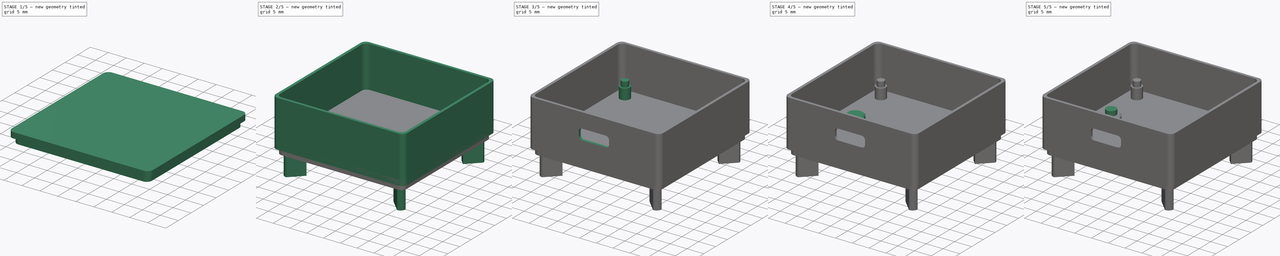
[diagram: build sequence overview — one tinted view per stage of 5, left to right]
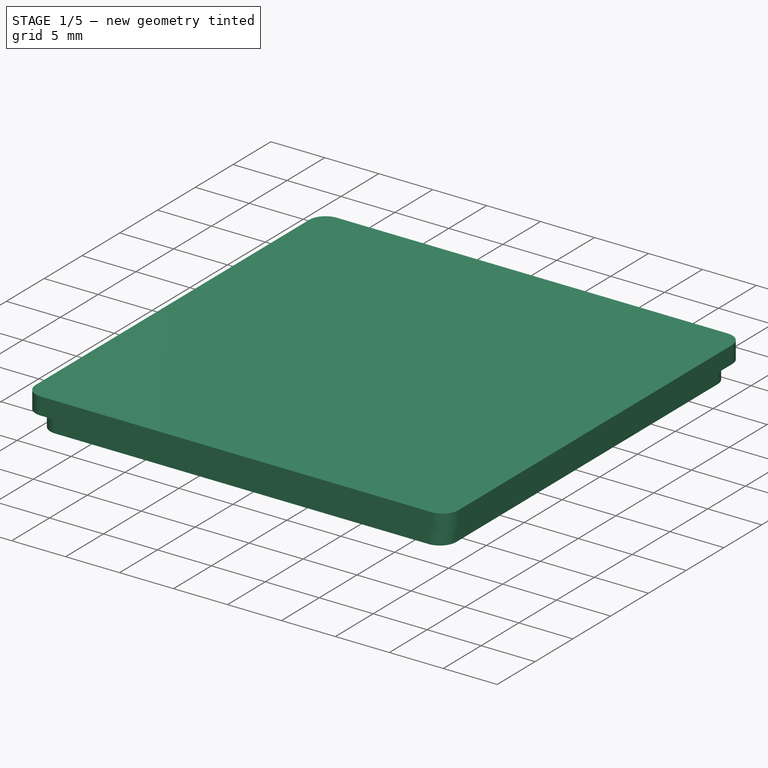
[diagram: stage 1 of 5 — iso view after this stage's code; geometry added in this stage tinted green]
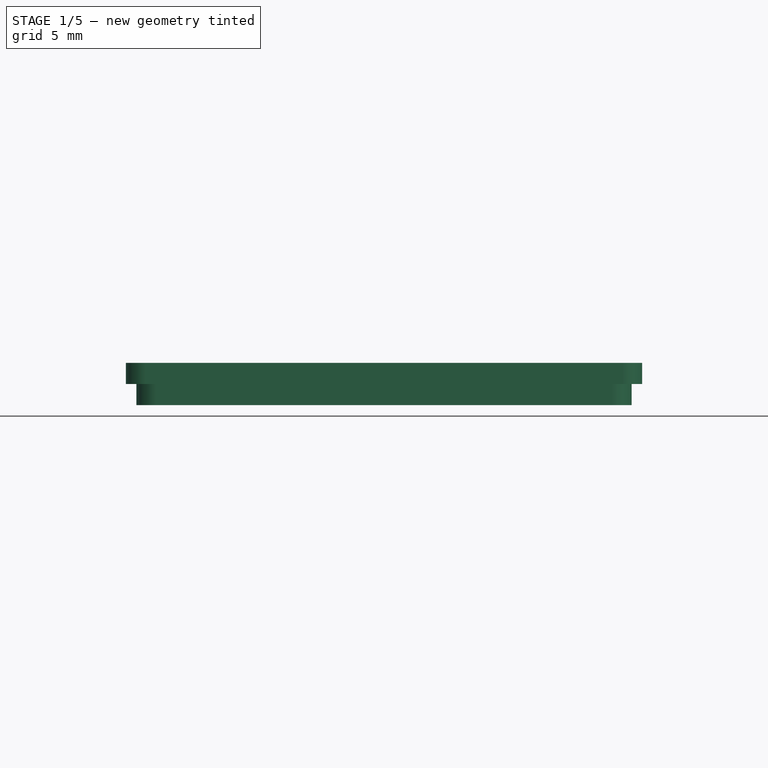
[diagram: stage 1 of 5 — front view after this stage's code; geometry added in this stage tinted green]
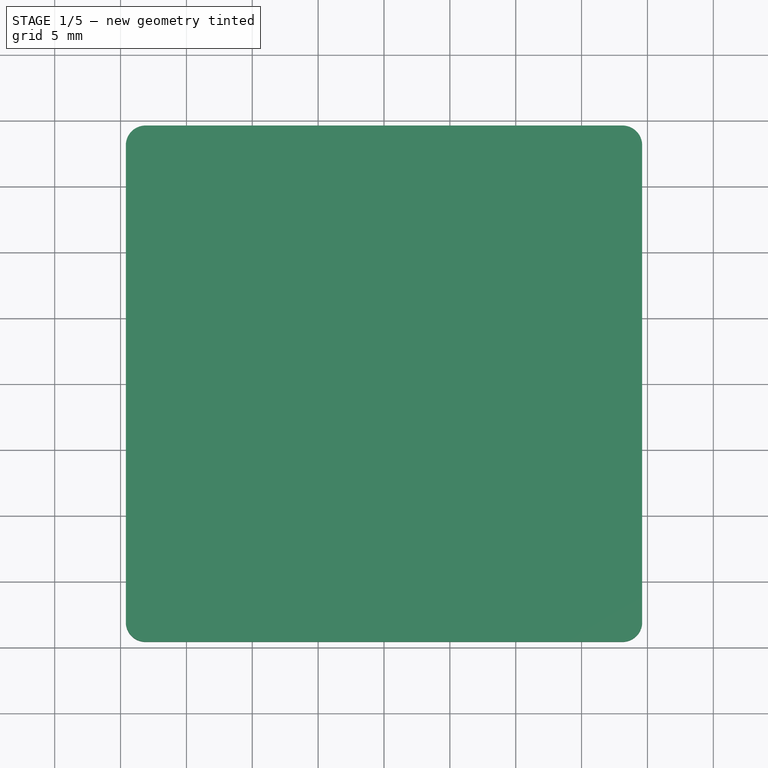
[diagram: stage 1 of 5 — top view after this stage's code; geometry added in this stage tinted green]
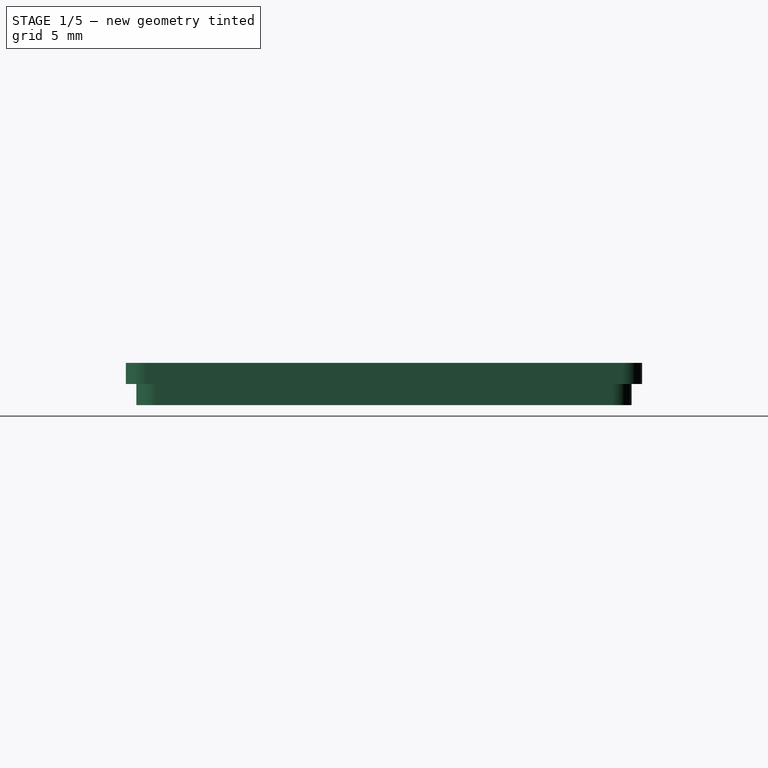
[diagram: stage 1 of 5 — right view after this stage's code; geometry added in this stage tinted green]
FCSTD DOCUMENT  (FreeCAD 0.21R33668 +26 (Git))
Label: TrackMAG_v1_Case
License: Public Domain
LicenseURL: https://en.wikipedia.org/wiki/Public_domain
objects: Part::Feature×104, Sketcher::SketchObject×20, PartDesign::Pad×12, App::Part×11, PartDesign::Pocket×7, PartDesign::Body×5, PartDesign::Chamfer×2, PartDesign::CoordinateSystem×1
note: 172 computed .brp shape members not serialized (recipe doc carries the construction recipe); baked Part::Feature solids carry a one-line shape summary decoded from their .brp

FEATURE [Sketcher::SketchObject] Sketch005
  FullyConstrained = true
  MapMode = 5
  Support = -> [XY_Plane016]
  sketch-geometry (9):
    g0: LineSegment StartX=-19.6 StartY=18.1 StartZ=0 EndX=-19.6 EndY=-18.1 EndZ=0
    g1: LineSegment StartX=-18.1 StartY=-19.6 StartZ=0 EndX=18.1 EndY=-19.6 EndZ=0
    g2: LineSegment StartX=19.6 StartY=-18.1 StartZ=0 EndX=19.6 EndY=18.1 EndZ=0
    g3: LineSegment StartX=18.1 StartY=19.6 StartZ=0 EndX=-18.1 EndY=19.6 EndZ=0
    g4: GeomPoint X=0 Y=0 Z=0
    g5: ArcOfCircle CenterX=-18.1 CenterY=18.1 CenterZ=0 NormalX=0 NormalY=0 NormalZ=1 AngleXU=0 Radius=1.5 StartAngle=1.5708 EndAngle=3.14159
    g6: ArcOfCircle CenterX=18.1 CenterY=18.1 CenterZ=0 NormalX=0 NormalY=0 NormalZ=1 AngleXU=0 Radius=1.5 StartAngle=-9e-16 EndAngle=1.5708
    g7: ArcOfCircle CenterX=18.1 CenterY=-18.1 CenterZ=0 NormalX=0 NormalY=0 NormalZ=1 AngleXU=0 Radius=1.5 StartAngle=4.71239 EndAngle=6.28319
    g8: ArcOfCircle CenterX=-18.1 CenterY=-18.1 CenterZ=0 NormalX=0 NormalY=0 NormalZ=1 AngleXU=0 Radius=1.5 StartAngle=3.14159 EndAngle=4.71239
  constraints (21):
    c: Horizontal(g1)
    c: Horizontal(g3)
    c: Vertical(g0)
    c: Vertical(g2)
    c: Coincident(g4,g-1)
    c: Tangent(g0,g5) = -1.5708
    c: Tangent(g3,g5) = -1.5708
    c: Tangent(g2,g6) = -1.5708
    c: Tangent(g3,g6) = -1.5708
    c: Tangent(g1,g7) = -1.5708
    c: Tangent(g2,g7) = -1.5708
    c: Tangent(g0,g8) = -1.5708
    c: Tangent(g1,g8) = -1.5708
    c: Radius(g5) = 1.5
    c: Equal(g5,g6)
    c: Equal(g6,g7)
    c: Equal(g7,g8)
    c: DistanceY(g4,g3) = 19.6
    c: DistanceX(g0,g4) = 19.6
    c: DistanceX(g4,g2) = 19.6
    c: DistanceY(g1,g4) = 19.6
FEATURE [PartDesign::Pad] Pad003
  Direction = (0,0,1)
  Length = 1.6
  Length2 = 10
  Profile = -> Sketch005
  ReferenceAxis = -> Sketch005 [N_Axis]
  Type = 0
FEATURE [Sketcher::SketchObject] Sketch006
  FullyConstrained = true
  MapMode = 5
  Placement = pos=(0,0,0) rot=(1,0,0;3.14159rad)
  Support = -> [Pad003]
  sketch-geometry (9):
    g0: LineSegment StartX=-18.8 StartY=17.3 StartZ=0 EndX=-18.8 EndY=-17.3 EndZ=0
    g1: LineSegment StartX=-17.3 StartY=-18.8 StartZ=0 EndX=17.3 EndY=-18.8 EndZ=0
    g2: LineSegment StartX=18.8 StartY=-17.3 StartZ=0 EndX=18.8 EndY=17.3 EndZ=0
    g3: LineSegment StartX=17.3 StartY=18.8 StartZ=0 EndX=-17.3 EndY=18.8 EndZ=0
    g4: GeomPoint X=0 Y=0 Z=0
    g5: ArcOfCircle CenterX=-17.3 CenterY=17.3 CenterZ=0 NormalX=0 NormalY=0 NormalZ=1 AngleXU=0 Radius=1.5 StartAngle=1.5708 EndAngle=3.14159
    g6: ArcOfCircle CenterX=17.3 CenterY=17.3 CenterZ=0 NormalX=0 NormalY=0 NormalZ=1 AngleXU=0 Radius=1.5 StartAngle=-7.1e-15 EndAngle=1.5708
    g7: ArcOfCircle CenterX=17.3 CenterY=-17.3 CenterZ=0 NormalX=0 NormalY=0 NormalZ=1 AngleXU=0 Radius=1.5 StartAngle=4.71239 EndAngle=6.28319
    g8: ArcOfCircle CenterX=-17.3 CenterY=-17.3 CenterZ=0 NormalX=0 NormalY=0 NormalZ=1 AngleXU=0 Radius=1.5 StartAngle=3.14159 EndAngle=4.71239
  constraints (21):
    c: Horizontal(g1)
    c: Horizontal(g3)
    c: Vertical(g0)
    c: Vertical(g2)
    c: Coincident(g4,g-1)
    c: Tangent(g0,g5) = -1.5708
    c: Tangent(g3,g5) = -1.5708
    c: Tangent(g2,g6) = -1.5708
    c: Tangent(g3,g6) = -1.5708
    c: Tangent(g1,g7) = -1.5708
    c: Tangent(g2,g7) = -1.5708
    c: Tangent(g0,g8) = -1.5708
    c: Tangent(g1,g8) = -1.5708
    c: Radius(g5) = 1.5
    c: Equal(g5,g6)
    c: Equal(g6,g7)
    c: Equal(g7,g8)
    c: DistanceY(g4,g3) = 18.8
    c: DistanceY(g1,g4) = 18.8
    c: DistanceX(g4,g2) = 18.8
    c: DistanceX(g0,g4) = 18.8
FEATURE [PartDesign::Pad] Pad004
  BaseFeature = -> Pad003
  Direction = (0,0,-1)
  Length = 1.6
  Length2 = 10
  Profile = -> Sketch006
  ReferenceAxis = -> Sketch006 [N_Axis]
  Type = 0
FEATURE [Sketcher::SketchObject] Sketch007
  FullyConstrained = true
  MapMode = 5
  Placement = pos=(0,0,-1.6) rot=(1,0,0;3.14159rad)
  Support = -> [Pad004]
  sketch-geometry (9):
    g0: LineSegment StartX=-18 StartY=-16.5 StartZ=0 EndX=-18 EndY=16.5 EndZ=0
    g1: LineSegment StartX=-16.5 StartY=18 StartZ=0 EndX=16.5 EndY=18 EndZ=0
    g2: LineSegment StartX=18 StartY=16.5 StartZ=0 EndX=18 EndY=-16.5 EndZ=0
    g3: LineSegment StartX=16.5 StartY=-18 StartZ=0 EndX=-16.5 EndY=-18 EndZ=0
    g4: GeomPoint X=0 Y=0 Z=0
    g5: ArcOfCircle CenterX=-16.5 CenterY=16.5 CenterZ=0 NormalX=0 NormalY=0 NormalZ=1 AngleXU=0 Radius=1.5 StartAngle=1.5708 EndAngle=3.14159
    g6: ArcOfCircle CenterX=16.5 CenterY=16.5 CenterZ=0 NormalX=0 NormalY=0 NormalZ=1 AngleXU=0 Radius=1.5 StartAngle=8e-16 EndAngle=1.5708
    g7: ArcOfCircle CenterX=16.5 CenterY=-16.5 CenterZ=0 NormalX=0 NormalY=0 NormalZ=1 AngleXU=0 Radius=1.5 StartAngle=4.71239 EndAngle=6.28319
    g8: ArcOfCircle CenterX=-16.5 CenterY=-16.5 CenterZ=0 NormalX=0 NormalY=0 NormalZ=1 AngleXU=0 Radius=1.5 StartAngle=3.14159 EndAngle=4.71239
  constraints (21):
    c: Horizontal(g1)
    c: Horizontal(g3)
    c: Vertical(g0)
    c: Vertical(g2)
    c: Coincident(g4,g-1)
    c: Tangent(g0,g5) = 1.5708
    c: Tangent(g1,g5) = 1.5708
    c: Tangent(g1,g6) = 1.5708
    c: Tangent(g2,g6) = 1.5708
    c: Tangent(g2,g7) = 1.5708
    c: Tangent(g3,g7) = 1.5708
    c: Tangent(g0,g8) = 1.5708
    c: Tangent(g3,g8) = 1.5708
    c: Radius(g5) = 1.5
    c: Equal(g5,g6)
    c: Equal(g6,g7)
    c: Equal(g7,g8)
    c: DistanceX(g0,g4) = 18
    c: DistanceY(g4,g1) = 18
    c: DistanceY(g3,g4) = 18
    c: DistanceX(g4,g2) = 18
FEATURE [PartDesign::Pocket] Pocket002
  BaseFeature = -> Pad004
  Direction = (0,0,1)
  Length = 0
  Length2 = 5
  Profile = -> Sketch007
  ReferenceAxis = -> Sketch007 [N_Axis]
  Type = 3
  UpToFace = -> Pad004 [Face4]
FEATURE [Sketcher::SketchObject] Sketch008
  ExternalGeometry = -> [Pocket002]
  FullyConstrained = false
  MapMode = 5
  Placement = pos=(0,0,0) rot=(1,0,0;3.14159rad)
  Support = -> [Pocket002]
  sketch-geometry (8):
    g0: ArcOfCircle CenterX=-16.5 CenterY=-16.5 CenterZ=0 NormalX=0 NormalY=0 NormalZ=1 AngleXU=0 Radius=1.5 StartAngle=3.14159 EndAngle=4.71239
    g1: LineSegment StartX=-18 StartY=-16.5 StartZ=0 EndX=16.5 EndY=18 EndZ=0
    g2: LineSegment StartX=18 StartY=16.5 StartZ=0 EndX=-16.5 EndY=-18 EndZ=0
    g3: ArcOfCircle CenterX=16.5 CenterY=16.5 CenterZ=0 NormalX=0 NormalY=0 NormalZ=1 AngleXU=0 Radius=1.5 StartAngle=0 EndAngle=1.5708
    g4: ArcOfCircle CenterX=-16.5 CenterY=16.5 CenterZ=0 NormalX=0 NormalY=0 NormalZ=1 AngleXU=0 Radius=1.5 StartAngle=1.5708 EndAngle=3.14159
    g5: ArcOfCircle CenterX=16.5 CenterY=-16.5 CenterZ=0 NormalX=0 NormalY=0 NormalZ=1 AngleXU=0 Radius=1.5 StartAngle=4.71239 EndAngle=6.28319
    g6: LineSegment StartX=-18 StartY=16.5 StartZ=0 EndX=16.5 EndY=-18 EndZ=0
    g7: LineSegment StartX=-16.5 StartY=18 StartZ=0 EndX=18 EndY=-16.5 EndZ=0
  constraints (19):
    c: Coincident(g0,g-6)
    c: Coincident(g0,g-6)
    c: Coincident(g1,g0)
    c: Coincident(g1,g-4)
    c: Coincident(g2,g-4)
    c: Coincident(g2,g0)
    c: Coincident(g3,g-4)
    c: Coincident(g3,g1)
    c: Coincident(g3,g2)
    c: Coincident(g4,g-3)
    c: Coincident(g4,g-3)
    c: Coincident(g5,g-5)
    c: Coincident(g5,g-5)
    c: Coincident(g5,g-5)
    c: Coincident(g6,g4)
    c: Coincident(g6,g5)
    c: Coincident(g7,g4)
    c: Coincident(g7,g5)
    c: DistanceX(g4,g4) = 1.5
FEATURE [PartDesign::Pad] Pad005
  BaseFeature = -> Pocket002
  Direction = (0,0,-1)
  Length = 10
  Length2 = 10
  Profile = -> Sketch008
  ReferenceAxis = -> Sketch008 [N_Axis]
  Type = 3
  UpToFace = -> Pocket002 [Face19]
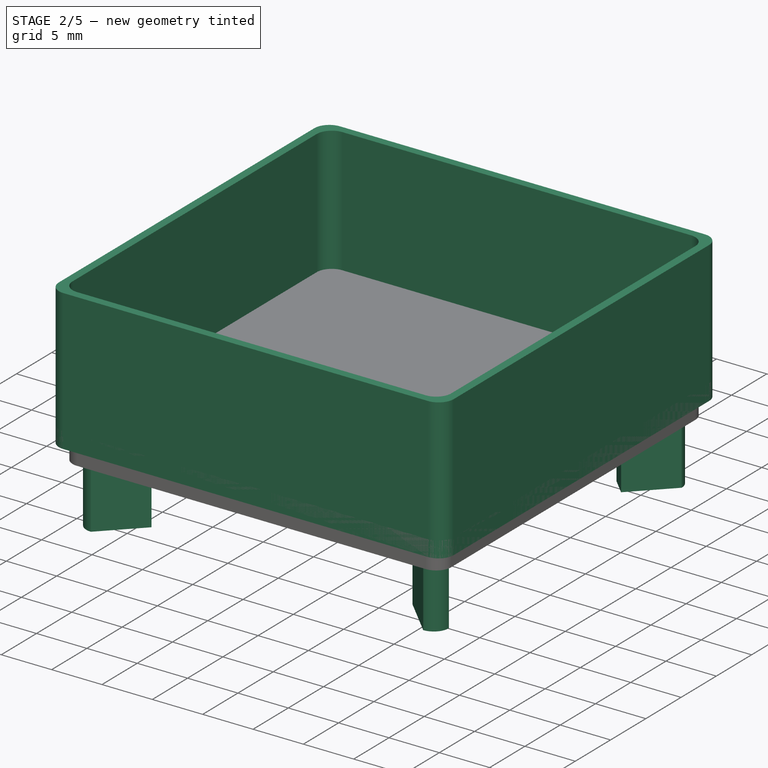
[diagram: stage 2 of 5 — iso view after this stage's code; geometry added in this stage tinted green]
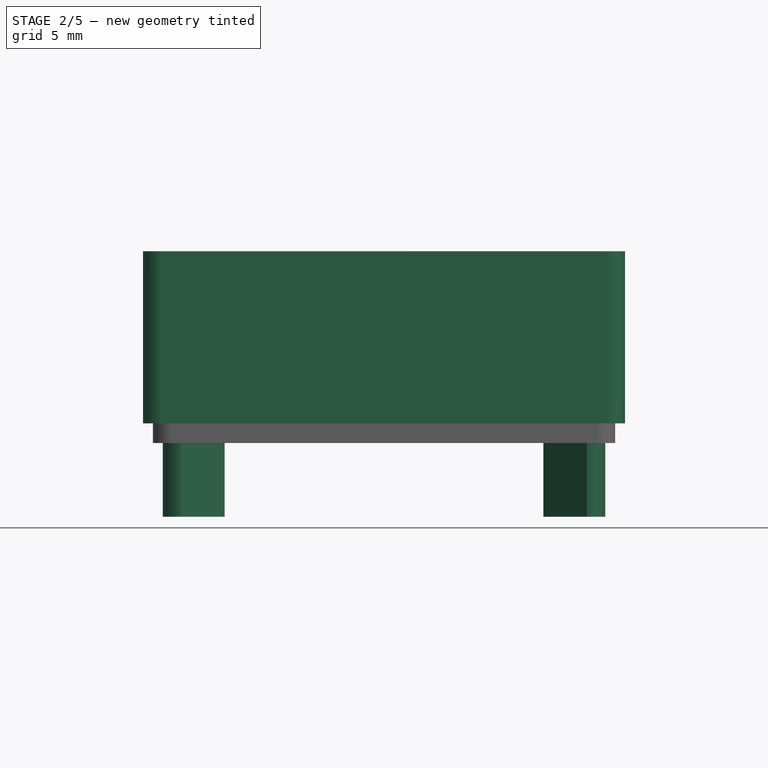
[diagram: stage 2 of 5 — front view after this stage's code; geometry added in this stage tinted green]
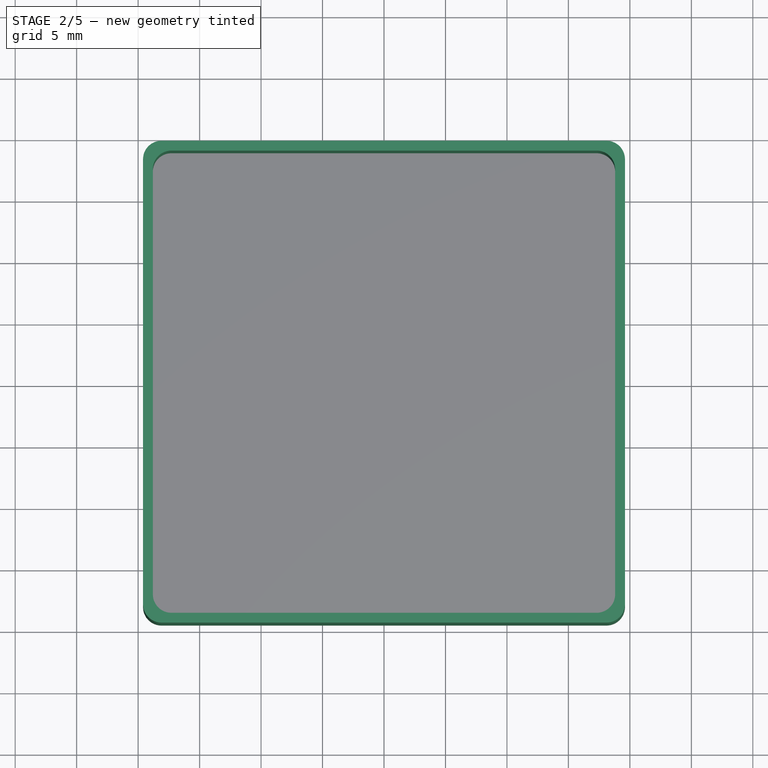
[diagram: stage 2 of 5 — top view after this stage's code; geometry added in this stage tinted green]
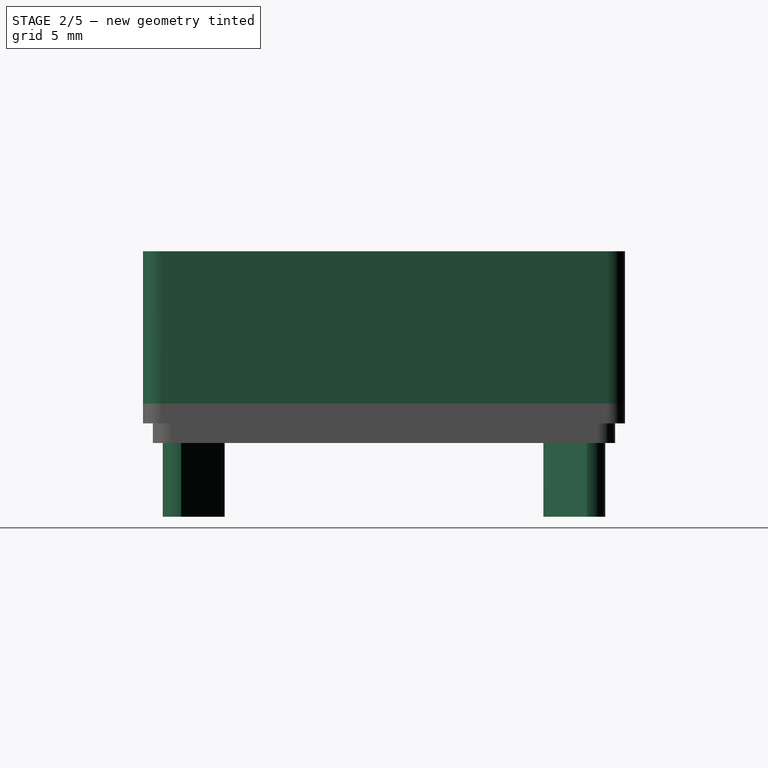
[diagram: stage 2 of 5 — right view after this stage's code; geometry added in this stage tinted green]
FEATURE [PartDesign::CoordinateSystem] Local_CS_d3d2
  AttacherType = Attacher::AttachEngine3D
  MapMode = 2
  Support = -> [X_Axis001]
FEATURE [Part::Feature] Pcb_d3d2
  Placement = pos=(-138.8,89,0) rot=(0,0,1;0rad)
  shape: bbox 36 x 36 x 1.6 mm, 48 faces (baked)
FEATURE [Sketcher::SketchObject] PCB_Sketch_d3d2
  FullyConstrained = false
  sketch-geometry (8):
    g0: LineSegment StartX=18 StartY=15 StartZ=0 EndX=18 EndY=-15 EndZ=0
    g1: LineSegment StartX=-15 StartY=18 StartZ=0 EndX=15 EndY=18 EndZ=0
    g2: LineSegment StartX=-18 StartY=-15 StartZ=0 EndX=-18 EndY=15 EndZ=0
    g3: LineSegment StartX=-15 StartY=-18 StartZ=0 EndX=15 EndY=-18 EndZ=0
    g4: ArcOfCircle CenterX=15 CenterY=15 CenterZ=0 NormalX=0 NormalY=0 NormalZ=-1 AngleXU=1.5708 Radius=3 StartAngle=0 EndAngle=1.5708
    g5: ArcOfCircle CenterX=-15 CenterY=15 CenterZ=0 NormalX=0 NormalY=0 NormalZ=-1 AngleXU=3.90995e-07 Radius=3 StartAngle=0 EndAngle=1.5708
    g6: ArcOfCircle CenterX=15 CenterY=-15 CenterZ=0 NormalX=0 NormalY=0 NormalZ=-1 AngleXU=-3.14159 Radius=3 StartAngle=0 EndAngle=1.5708
    g7: ArcOfCircle CenterX=-15 CenterY=-15 CenterZ=0 NormalX=0 NormalY=0 NormalZ=-1 AngleXU=-1.5708 Radius=3 StartAngle=0 EndAngle=1.5708
FEATURE [App::Part] Board_Geoms_d3d2
  Group = -> [Pcb_d3d2,PCB_Sketch_d3d2]
  Origin = -> Origin
FEATURE [Part::Feature] Shape  label="C5_C_0402_1005Metric_9a69e1afbfc4"
  Placement = pos=(9.275,-8.72,0) rot=(0,0,1;3.14159rad)
  shape: bbox 1 x 0.5 x 0.5 mm, 28 faces (baked)
FEATURE [Part::Feature] Shape001  label="U2_SOT_666_c43711e0865f"
  Placement = pos=(7.8825,0.475,0) rot=(0,0,1;3.14159rad)
  shape: bbox 1.6 x 1.6 x 0.55 mm, 46 faces (baked)
FEATURE [Part::Feature] Shape002  label="Y1_Crystal_SMD_3225-4Pin_3.2x2.5mm_c5e00f3d7473"
  Placement = pos=(-14.05,-0.275,0) rot=(0,0,-1;1.5708rad)
  shape: bbox 2.501 x 3.2 x 0.64 mm, 28 faces (baked)
FEATURE [Part::Feature] Shape003  label="R6_R_0402_1005Metric_10b8d5d8e81b"
  Placement = pos=(8.525,3.175,0) rot=(0,0,-1;1.5708rad)
  shape: bbox 0.5 x 1 x 0.35 mm, 26 faces (baked)
FEATURE [Part::Feature] Shape004  label="C4_C_0402_1005Metric_6f371c34e9a7"
  Placement = pos=(11.2,-8.72,0) rot=(0,0,1;0rad)
  shape: bbox 1 x 0.5 x 0.5 mm, 28 faces (baked)
FEATURE [Part::Feature] Part__Feature  label="SW-SMD_4P-L5.2-W5.2-H1.5-LS6.4-P3.071"
  shape: bbox 2.6 x 0.1 x 0.7 mm, 6 faces (baked)
FEATURE [Part::Feature] Part__Feature001  label="SW-SMD_4P-L5.2-W5.2-H1.5-LS6.4-P3.70"
  shape: bbox 0.1 x 2.6 x 0.7 mm, 6 faces (baked)
FEATURE [Part::Feature] Part__Feature002  label="SW-SMD_4P-L5.2-W5.2-H1.5-LS6.4-P3.072"
  shape: bbox 2.6 x 0.1 x 0.7 mm, 6 faces (baked)
FEATURE [Part::Feature] Part__Feature003  label="SW-SMD_4P-L5.2-W5.2-H1.5-LS6.4-P3.073"
  shape: bbox 0.1 x 2.6 x 0.7 mm, 6 faces (baked)
FEATURE [Part::Feature] Part__Feature004  label="SW-SMD_4P-L5.2-W5.2-H1.5-LS6.4-P3.074"
  shape: bbox 2.6 x 0.1 x 0.7 mm, 6 faces (baked)
FEATURE [Part::Feature] Part__Feature005  label="SW-SMD_4P-L5.2-W5.2-H1.5-LS6.4-P3.075"
  shape: bbox 5.2 x 5.2 x 0.5 mm, 78 faces (baked)
FEATURE [Part::Feature] Part__Feature006  label="SW-SMD_4P-L5.2-W5.2-H1.5-LS6.4-P3.076"
  shape: bbox 2.165 x 2.165 x 0.5 mm, 6 faces (baked)
FEATURE [Part::Feature] Part__Feature007  label="SW-SMD_4P-L5.2-W5.2-H1.5-LS6.4-P3.077"
  shape: bbox 6.4 x 5 x 0.75 mm, 153 faces (baked)
FEATURE [App::Part] SW_SMD_4P_L5_2_W5_2_H1_5_LS6_4_P3_090  label="SW-SMD_4P-L5.2-W5.2-H1.5-LS6.4-P3.090"
  Group = -> [Part__Feature001,Part__Feature002,Part__Feature003,Part__Feature004,Part__Feature005,Part__Feature006,Part__Feature007]
  Origin = -> Origin008
FEATURE [App::Part] Unnamed  label="SW2_Unnamed_e7c2fdaa7b54[2]"
  Group = -> [Part__Feature,SW_SMD_4P_L5_2_W5_2_H1_5_LS6_4_P3_090]
  Origin = -> Origin009
  Placement = pos=(-12.85,6.6,0) rot=(0,0,1;1.5708rad)
FEATURE [Part::Feature] Shape005  label="C24_C_0402_1005Metric_25848f3d0c58"
  Placement = pos=(12.63,-10.6325,0) rot=(0,0,1;1.5708rad)
  shape: bbox 0.5 x 1 x 0.5 mm, 28 faces (baked)
FEATURE [Part::Feature] Shape006  label="FB2_R_0805_2012Metric_17915c3d4c20"
  Placement = pos=(8.525,6.225,0) rot=(0,0,1;1.5708rad)
  shape: bbox 1.2 x 2 x 0.45 mm, 26 faces (baked)
FEATURE [Part::Feature] Shape007  label="C21_C_0402_1005Metric_c99b34758c5f"
  Placement = pos=(-11.6,0.92,0) rot=(0,0,1;1.5708rad)
  shape: bbox 0.5 x 1 x 0.5 mm, 28 faces (baked)
FEATURE [Part::Feature] Shape008  label="C7_C_0402_1005Metric_9be6bc2ca55f"
  Placement = pos=(8.7125,-10.5525,0) rot=(0,0,1;1.5708rad)
  shape: bbox 0.5 x 1 x 0.5 mm, 28 faces (baked)
FEATURE [Part::Feature] Shape009  label="C18_CP_EIA_3216_18_Kemet_A_433f65eda25f"
  Placement = pos=(15.075,6.75,0) rot=(0,0,1;0rad)
  shape: bbox 3.2 x 1.696 x 1.8 mm, 46 faces (baked)
FEATURE [Part::Feature] Part__Feature008  label="SW-SMD_4P-L5.2-W5.2-H1.5-LS6.4-P3.091"
  shape: bbox 2.6 x 0.1 x 0.7 mm, 6 faces (baked)
FEATURE [Part::Feature] Part__Feature009  label="SW-SMD_4P-L5.2-W5.2-H1.5-LS6.4-P3.092"
  shape: bbox 0.1 x 2.6 x 0.7 mm, 6 faces (baked)
FEATURE [Part::Feature] Part__Feature010  label="SW-SMD_4P-L5.2-W5.2-H1.5-LS6.4-P3.093"
  shape: bbox 2.6 x 0.1 x 0.7 mm, 6 faces (baked)
FEATURE [Part::Feature] Part__Feature011  label="SW-SMD_4P-L5.2-W5.2-H1.5-LS6.4-P3.094"
  shape: bbox 0.1 x 2.6 x 0.7 mm, 6 faces (baked)
FEATURE [Part::Feature] Part__Feature012  label="SW-SMD_4P-L5.2-W5.2-H1.5-LS6.4-P3.095"
  shape: bbox 2.6 x 0.1 x 0.7 mm, 6 faces (baked)
FEATURE [Part::Feature] Part__Feature013  label="SW-SMD_4P-L5.2-W5.2-H1.5-LS6.4-P3.096"
  shape: bbox 5.2 x 5.2 x 0.5 mm, 78 faces (baked)
FEATURE [Part::Feature] Part__Feature014  label="SW-SMD_4P-L5.2-W5.2-H1.5-LS6.4-P3.097"
  shape: bbox 2.165 x 2.165 x 0.5 mm, 6 faces (baked)
FEATURE [Part::Feature] Part__Feature015  label="SW-SMD_4P-L5.2-W5.2-H1.5-LS6.4-P3.098"
  shape: bbox 6.4 x 5 x 0.75 mm, 153 faces (baked)
FEATURE [App::Part] SW_SMD_4P_L5_2_W5_2_H1_5_LS6_4_P3_091  label="SW-SMD_4P-L5.2-W5.2-H1.5-LS6.4-P3.099"
  Group = -> [Part__Feature009,Part__Feature010,Part__Feature011,Part__Feature012,Part__Feature013,Part__Feature014,Part__Feature015]
  Origin = -> Origin011
FEATURE [App::Part] Unnamed001  label="SW1_Unnamed_45460861c00b[2]"
  Group = -> [Part__Feature008,SW_SMD_4P_L5_2_W5_2_H1_5_LS6_4_P3_091]
  Origin = -> Origin010
  Placement = pos=(-12.85,-7.9,0) rot=(0,0,1;1.5708rad)
FEATURE [Part::Feature] Shape010  label="U5_SOT_223_951f59756fd7"
  Placement = pos=(5.05,12.7,0) rot=(0,0,1;1.5708rad)
  shape: bbox 6.5 x 7 x 1.7 mm, 78 faces (baked)
FEATURE [Part::Feature] Shape011  label="R11_R_0402_1005Metric_36e4ea1ddef2"
  Placement = pos=(10,-12.545,0) rot=(0,0,1;0rad)
  shape: bbox 1 x 0.5 x 0.35 mm, 26 faces (baked)
FEATURE [Part::Feature] Part__Feature016  label="SW-SMD_4P-L5.2-W5.2-H1.5-LS6.4-P3.100"
  shape: bbox 2.6 x 0.1 x 0.7 mm, 6 faces (baked)
FEATURE [Part::Feature] Part__Feature017  label="SW-SMD_4P-L5.2-W5.2-H1.5-LS6.4-P3.101"
  shape: bbox 0.1 x 2.6 x 0.7 mm, 6 faces (baked)
FEATURE [Part::Feature] Part__Feature018  label="SW-SMD_4P-L5.2-W5.2-H1.5-LS6.4-P3.102"
  shape: bbox 2.6 x 0.1 x 0.7 mm, 6 faces (baked)
FEATURE [Part::Feature] Part__Feature019  label="SW-SMD_4P-L5.2-W5.2-H1.5-LS6.4-P3.103"
  shape: bbox 0.1 x 2.6 x 0.7 mm, 6 faces (baked)
FEATURE [Part::Feature] Part__Feature020  label="SW-SMD_4P-L5.2-W5.2-H1.5-LS6.4-P3.104"
  shape: bbox 2.6 x 0.1 x 0.7 mm, 6 faces (baked)
FEATURE [Part::Feature] Part__Feature021  label="SW-SMD_4P-L5.2-W5.2-H1.5-LS6.4-P3.105"
  shape: bbox 5.2 x 5.2 x 0.5 mm, 78 faces (baked)
FEATURE [Part::Feature] Part__Feature022  label="SW-SMD_4P-L5.2-W5.2-H1.5-LS6.4-P3.106"
  shape: bbox 2.165 x 2.165 x 0.5 mm, 6 faces (baked)
FEATURE [Part::Feature] Part__Feature023  label="SW-SMD_4P-L5.2-W5.2-H1.5-LS6.4-P3.107"
  shape: bbox 6.4 x 5 x 0.75 mm, 153 faces (baked)
FEATURE [App::Part] SW_SMD_4P_L5_2_W5_2_H1_5_LS6_4_P3_092  label="SW-SMD_4P-L5.2-W5.2-H1.5-LS6.4-P3.108"
  Group = -> [Part__Feature017,Part__Feature018,Part__Feature019,Part__Feature020,Part__Feature021,Part__Feature022,Part__Feature023]
  Origin = -> Origin013
FEATURE [App::Part] Unnamed002  label="SW3_Unnamed_2512d42aec70[2]"
  Group = -> [Part__Feature016,SW_SMD_4P_L5_2_W5_2_H1_5_LS6_4_P3_092]
  Origin = -> Origin012
  Placement = pos=(-1,-12.85,0) rot=(0,0,1;3.14159rad)
FEATURE [Part::Feature] Shape012  label="D2_D_SMB_b67b8ca27ae9"
  Placement = pos=(13.35,10.225,0) rot=(0,0,1;0rad)
  shape: bbox 5.3 x 3.55 x 2.15 mm, 41 faces (baked)
FEATURE [Part::Feature] Shape013  label="D1_LED_0603_1608Metric_e1b3c7ec0367"
  Placement = pos=(16.275,-9.725,0) rot=(0,0,-1;1.5708rad)
  shape: bbox 0.8 x 1.6 x 1.1 mm, 50 faces (baked)
FEATURE [Part::Feature] Shape014  label="R5_R_0402_1005Metric_749ad747d199"
  Placement = pos=(8.525,-2.235,0) rot=(0,0,1;1.5708rad)
  shape: bbox 0.5 x 1 x 0.35 mm, 26 faces (baked)
FEATURE [Part::Feature] Shape015  label="C22_C_0402_1005Metric_51b8da385749"
  Placement = pos=(-11.6,-1.47,0) rot=(0,0,-1;1.5708rad)
  shape: bbox 0.5 x 1 x 0.5 mm, 28 faces (baked)
FEATURE [Part::Feature] Shape016  label="C13_C_0402_1005Metric_0a9d8d8b6256"
  Placement = pos=(1.28,-6.425,0) rot=(0,0,1;3.14159rad)
  shape: bbox 1 x 0.5 x 0.5 mm, 28 faces (baked)
FEATURE [Part::Feature] Shape017  label="C26_CP_EIA_3528_21_Kemet_B_90cebfa39647"
  Placement = pos=(-1.4375,8.625,0) rot=(0,0,1;3.14159rad)
  shape: bbox 3.5 x 2.936 x 2.1 mm, 49 faces (baked)
FEATURE [Part::Feature] Shape018  label="R2_R_0402_1005Metric_bf39874a3177"
  Placement = pos=(-1.135,-7.6,0) rot=(0,0,1;3.14159rad)
  shape: bbox 1 x 0.5 x 0.35 mm, 26 faces (baked)
FEATURE [Part::Feature] Shape019  label="C14_C_0402_1005Metric_74524feb4748"
  Placement = pos=(-7.7,-2.25,0) rot=(0,0,-1;1.5708rad)
  shape: bbox 0.5 x 1 x 0.5 mm, 28 faces (baked)
FEATURE [Part::Feature] Shape020  label="C3_C_0402_1005Metric_b7d28959cc93"
  Placement = pos=(5.35,-5.85,0) rot=(0,0,1;1.5708rad)
  shape: bbox 0.5 x 1 x 0.5 mm, 28 faces (baked)
FEATURE [Part::Feature] Shape021  label="C16_C_0402_1005Metric_8a28c750fc0c"
  Placement = pos=(-7.425,-4.75,0) rot=(0,0,1;0rad)
  shape: bbox 1 x 0.5 x 0.5 mm, 28 faces (baked)
FEATURE [Part::Feature] Shape022  label="C12_C_0402_1005Metric_e2d5079fb1e0"
  Placement = pos=(4.275,1.945,0) rot=(0,0,-1;1.5708rad)
  shape: bbox 0.5 x 1 x 0.5 mm, 28 faces (baked)
FEATURE [Part::Feature] Shape023  label="C10_C_0402_1005Metric_4719a34ee131"
  Placement = pos=(-7.625,2.725,0) rot=(0,0,1;1.5708rad)
  shape: bbox 0.5 x 1 x 0.5 mm, 28 faces (baked)
FEATURE [Part::Feature] Shape024  label="R9_R_0402_1005Metric_5df443b7ed3e"
  Placement = pos=(5.825,1.4,0) rot=(0,0,1;1.5708rad)
  shape: bbox 0.5 x 1 x 0.35 mm, 26 faces (baked)
FEATURE [Part::Feature] Shape025  label="J3_PinHeader_1x05_P254mm_Vertical_f92b8569dab7"
  Placement = pos=(-10.74,15.2,0) rot=(0,0,1;1.5708rad)
  shape: bbox 12.7 x 2.54 x 11.54 mm, 124 faces (baked)
FEATURE [Part::Feature] Shape026  label="R12_R_0402_1005Metric_7cb5b9999224"
  Placement = pos=(16.275,-6.975,0) rot=(0,0,1;1.5708rad)
  shape: bbox 0.5 x 1 x 0.35 mm, 26 faces (baked)
FEATURE [Part::Feature] Shape027  label="R4_R_0402_1005Metric_2e21d4b728d1"
  Placement = pos=(5.7625,-13.43,0) rot=(0,0,-1;1.5708rad)
  shape: bbox 0.5 x 1 x 0.35 mm, 26 faces (baked)
FEATURE [Part::Feature] Shape028  label="R1_R_0402_1005Metric_d8ff90d443a8"
  Placement = pos=(-9.375,-3.325,0) rot=(0,0,1;0rad)
  shape: bbox 1 x 0.5 x 0.35 mm, 26 faces (baked)
FEATURE [Part::Feature] Shape029  label="C6_C_0402_1005Metric_24ae957f6994"
  Placement = pos=(7.025,-8.145,0) rot=(0,0,1;3.14159rad)
  shape: bbox 1 x 0.5 x 0.5 mm, 28 faces (baked)
FEATURE [Part::Feature] Shape030  label="C19_C_0402_1005Metric_59439e0915fe"
  Placement = pos=(11.775,6.67,0) rot=(0,0,1;1.5708rad)
  shape: bbox 0.5 x 1 x 0.5 mm, 28 faces (baked)
FEATURE [Part::Feature] Shape031  label="C8_CP_EIA_3216_18_Kemet_A_7c873c08f671"
  Placement = pos=(11.2,-7.12,0) rot=(0,0,1;0rad)
  shape: bbox 3.2 x 1.696 x 1.8 mm, 46 faces (baked)
FEATURE [Part::Feature] Shape032  label="C15_C_0402_1005Metric_27ff3f71a5b5"
  Placement = pos=(-6.075,-7.975,0) rot=(0,0,1;0rad)
  shape: bbox 1 x 0.5 x 0.5 mm, 28 faces (baked)
FEATURE [Part::Feature] Shape033  label="J1_PinHeader_1x03_P254mm_Vertical_022d0ddfe1a0"
  Placement = pos=(-6.7,-15.6,0) rot=(0,0,1;3.14159rad)
  shape: bbox 2.54 x 7.62 x 11.54 mm, 76 faces (baked)
FEATURE [Part::Feature] Shape034  label="R3_R_0402_1005Metric_e49eb8bdb652"
  Placement = pos=(0.885,-7.6,0) rot=(0,0,1;0rad)
  shape: bbox 1 x 0.5 x 0.35 mm, 26 faces (baked)
FEATURE [Part::Feature] Shape035  label="C20_C_0402_1005Metric_27a3aa8959b8"
  Placement = pos=(10.45,6.68,0) rot=(0,0,1;1.5708rad)
  shape: bbox 0.5 x 1 x 0.5 mm, 28 faces (baked)
FEATURE [Part::Feature] Shape036  label="C9_C_0402_1005Metric_0a1977d0a397"
  Placement = pos=(-6.2,4.52,0) rot=(0,0,-1;1.5708rad)
  shape: bbox 0.5 x 1 x 0.5 mm, 28 faces (baked)
FEATURE [Part::Feature] Shape037  label="U1_LGA_14_3x25mm_P05mm_LayoutBorder3x4y_7199b8fc1dde"
  Placement = pos=(6.5175,-10.57,0) rot=(0,0,1;1.5708rad)
  shape: bbox 2.5 x 3 x 0.78 mm, 78 faces (baked)
FEATURE [Part::Feature] Shape038  label="R10_R_0402_1005Metric_231d026e172c"
  Placement = pos=(10,-13.67,0) rot=(0,0,1;0rad)
  shape: bbox 1 x 0.5 x 0.35 mm, 26 faces (baked)
FEATURE [Part::Feature] Shape039  label="R7_R_0402_1005Metric_1a7d9c21a035"
  Placement = pos=(-6.66,6.225,0) rot=(0,0,1;0rad)
  shape: bbox 1 x 0.5 x 0.35 mm, 26 faces (baked)
FEATURE [Part::Feature] Shape040  label="C2_C_0402_1005Metric_64404e57eaa8"
  Placement = pos=(6.5,-5.85,0) rot=(0,0,1;1.5708rad)
  shape: bbox 0.5 x 1 x 0.5 mm, 28 faces (baked)
FEATURE [Part::Feature] Part__Feature024  label="USB-C-SMD_G-SWITCH_GT-USB-7010ASV"
  shape: bbox 0.3 x 2.2 x 0.1 mm, 6 faces (baked)
FEATURE [Part::Feature] Part__Feature025  label="USB-C-SMD_G-SWITCH_GT-USB-7010ASV001"
  shape: bbox 0.2 x 0.85 x 0.1427 mm, 9 faces (baked)
FEATURE [Part::Feature] Part__Feature026  label="USB-C-SMD_G-SWITCH_GT-USB-7010ASV002"
  shape: bbox 0.2 x 0.85 x 0.1427 mm, 9 faces (baked)
FEATURE [Part::Feature] Part__Feature027  label="USB-C-SMD_G-SWITCH_GT-USB-7010ASV003"
  shape: bbox 0.3 x 2.35 x 0.1 mm, 6 faces (baked)
FEATURE [Part::Feature] Part__Feature028  label="USB-C-SMD_G-SWITCH_GT-USB-7010ASV004"
  shape: bbox 0.2 x 0.85 x 0.1427 mm, 9 faces (baked)
FEATURE [Part::Feature] Part__Feature029  label="USB-C-SMD_G-SWITCH_GT-USB-7010ASV005"
  shape: bbox 0.2 x 0.85 x 0.1427 mm, 9 faces (baked)
FEATURE [Part::Feature] Part__Feature030  label="USB-C-SMD_G-SWITCH_GT-USB-7010ASV006"
  shape: bbox 0.3 x 2.2 x 0.1 mm, 6 faces (baked)
FEATURE [Part::Feature] Part__Feature031  label="USB-C-SMD_G-SWITCH_GT-USB-7010ASV007"
  shape: bbox 0.2 x 0.85 x 0.1427 mm, 9 faces (baked)
FEATURE [Part::Feature] Part__Feature032  label="USB-C-SMD_G-SWITCH_GT-USB-7010ASV008"
  shape: bbox 0.3 x 2.35 x 0.1 mm, 6 faces (baked)
FEATURE [Part::Feature] Part__Feature033  label="USB-C-SMD_G-SWITCH_GT-USB-7010ASV009"
  shape: bbox 0.2 x 0.85 x 0.1427 mm, 9 faces (baked)
FEATURE [Part::Feature] Part__Feature034  label="USB-C-SMD_G-SWITCH_GT-USB-7010ASV010"
  shape: bbox 0.2 x 0.85 x 0.1427 mm, 9 faces (baked)
FEATURE [Part::Feature] Part__Feature035  label="USB-C-SMD_G-SWITCH_GT-USB-7010ASV011"
  shape: bbox 0.2 x 0.85 x 0.1427 mm, 9 faces (baked)
FEATURE [Part::Feature] Part__Feature036  label="USB-C-SMD_G-SWITCH_GT-USB-7010ASV012"
  shape: bbox 0.3 x 2.35 x 0.1 mm, 6 faces (baked)
FEATURE [Part::Feature] Part__Feature037  label="USB-C-SMD_G-SWITCH_GT-USB-7010ASV013"
  shape: bbox 0.2 x 0.85 x 0.1427 mm, 9 faces (baked)
FEATURE [Part::Feature] Part__Feature038  label="USB-C-SMD_G-SWITCH_GT-USB-7010ASV014"
  shape: bbox 8.94 x 7.33 x 4.66 mm, 268 faces (baked)
FEATURE [Part::Feature] Part__Feature039  label="USB-C-SMD_G-SWITCH_GT-USB-7010ASV015"
  shape: bbox 0.2 x 0.85 x 0.1427 mm, 9 faces (baked)
FEATURE [Part::Feature] Part__Feature040  label="USB-C-SMD_G-SWITCH_GT-USB-7010ASV016"
  shape: bbox 0.2 x 0.85 x 0.1427 mm, 9 faces (baked)
FEATURE [Part::Feature] Part__Feature041  label="USB-C-SMD_G-SWITCH_GT-USB-7010ASV017"
  shape: bbox 0.3 x 2.35 x 0.1 mm, 6 faces (baked)
FEATURE [Part::Feature] Part__Feature042  label="USB-C-SMD_G-SWITCH_GT-USB-7010ASV018"
  shape: bbox 0.2 x 0.85 x 0.1427 mm, 9 faces (baked)
FEATURE [Part::Feature] Part__Feature043  label="USB-C-SMD_G-SWITCH_GT-USB-7010ASV019"
  shape: bbox 0.3 x 2.35 x 0.1 mm, 6 faces (baked)
FEATURE [Part::Feature] Part__Feature044  label="USB-C-SMD_G-SWITCH_GT-USB-7010ASV020"
  shape: bbox 0.2 x 0.85 x 0.1427 mm, 9 faces (baked)
FEATURE [Part::Feature] Part__Feature045  label="USB-C-SMD_G-SWITCH_GT-USB-7010ASV021"
  shape: bbox 0.2 x 0.85 x 0.1427 mm, 9 faces (baked)
FEATURE [Part::Feature] Part__Feature046  label="USB-C-SMD_G-SWITCH_GT-USB-7010ASV022"
  shape: bbox 0.3 x 2.35 x 0.1 mm, 6 faces (baked)
FEATURE [Part::Feature] Part__Feature047  label="USB-C-SMD_G-SWITCH_GT-USB-7010ASV023"
  shape: bbox 0.3 x 2.35 x 0.1 mm, 6 faces (baked)
FEATURE [Part::Feature] Part__Feature048  label="USB-C-SMD_G-SWITCH_GT-USB-7010ASV024"
  shape: bbox 0.2 x 0.85 x 0.1427 mm, 9 faces (baked)
FEATURE [Part::Feature] Part__Feature049  label="USB-C-SMD_G-SWITCH_GT-USB-7010ASV025"
  shape: bbox 0.2 x 0.85 x 0.1427 mm, 9 faces (baked)
FEATURE [Part::Feature] Part__Feature050  label="USB-C-SMD_G-SWITCH_GT-USB-7010ASV026"
  shape: bbox 0.3 x 2.35 x 0.1 mm, 6 faces (baked)
FEATURE [Part::Feature] Part__Feature051  label="USB-C-SMD_G-SWITCH_GT-USB-7010ASV027"
  shape: bbox 0.3 x 2.35 x 0.1 mm, 6 faces (baked)
FEATURE [Part::Feature] Part__Feature052  label="USB-C-SMD_G-SWITCH_GT-USB-7010ASV028"
  shape: bbox 8.94 x 7.13 x 3.54 mm, 180 faces (baked)
FEATURE [App::Part] USB_C_SMD_G_SWITCH_GT_USB_7010ASV042  label="J2_USB-C-SMD_G-SWITCH_GT-USB-7010ASV042_a5ef2f48f44e[2]"
  Group = -> [Part__Feature024,Part__Feature025,Part__Feature026,Part__Feature027,Part__Feature028,Part__Feature029,Part__Feature030,Part__Feature031,Part__Feature032,Part__Feature033,Part__Feature034,Part__Feature035,Part__Feature036,Part__Feature037,Part__Feature038,Part__Feature039,Part__Feature040,Part__Feature041,Part__Feature042,Part__Feature043,Part__Feature044,Part__Feature045,Part__Feature046,+6 more]
  Origin = -> Origin014
  Placement = pos=(14.395,0,0) rot=(0,0,1;1.5708rad)
FEATURE [Part::Feature] Shape041  label="R8_R_0402_1005Metric_10fbabfc764a"
  Placement = pos=(-9.94,-0.275,0) rot=(0,0,1;0rad)
  shape: bbox 1 x 0.5 x 0.35 mm, 26 faces (baked)
FEATURE [Part::Feature] Shape042  label="C1_C_0402_1005Metric_258238f96722"
  Placement = pos=(7.625,-5.85,0) rot=(0,0,1;1.5708rad)
  shape: bbox 0.5 x 1 x 0.5 mm, 28 faces (baked)
FEATURE [Part::Feature] Shape043  label="C11_C_0402_1005Metric_8ac9b1500c0a"
  Placement = pos=(-4.18,5.425,0) rot=(0,0,1;0rad)
  shape: bbox 1 x 0.5 x 0.5 mm, 28 faces (baked)
FEATURE [Part::Feature] Shape044  label="C17_C_0402_1005Metric_c5ac00999483"
  Placement = pos=(-9.375,-2.2,0) rot=(0,0,1;0rad)
  shape: bbox 1 x 0.5 x 0.5 mm, 28 faces (baked)
FEATURE [Part::Feature] Shape045  label="C25_CP_EIA_3528_21_Kemet_B_1a3dc326690a"
  Placement = pos=(4.575,6.2,0) rot=(0,0,1;3.14159rad)
  shape: bbox 3.5 x 2.936 x 2.1 mm, 49 faces (baked)
FEATURE [Part::Feature] Shape046  label="U4_LGA_12_2x2mm_P05mm_7dc6c2b7fe9b"
  Placement = pos=(10.6875,-10.57,0) rot=(0,0,1;1.5708rad)
  shape: bbox 2 x 2 x 1.025 mm, 68 faces (baked)
FEATURE [Part::Feature] Shape047  label="U3_LQFP_48_7x7mm_P05mm_4757797d132b"
  Placement = pos=(-1.6625,-0.525,0) rot=(0,0,1;0rad)
  shape: bbox 9 x 9 x 1.5 mm, 764 faces (baked)
FEATURE [Part::Feature] Shape048  label="FB1_R_0805_2012Metric_fa4725e33dd0"
  Placement = pos=(-8.1875,-6.275,0) rot=(0,0,1;3.14159rad)
  shape: bbox 2 x 1.2 x 0.45 mm, 26 faces (baked)
FEATURE [Part::Feature] Shape049  label="C23_C_0402_1005Metric_6f7f8182936f"
  Placement = pos=(-2.78,-6.3,0) rot=(0,0,1;0rad)
  shape: bbox 1 x 0.5 x 0.5 mm, 28 faces (baked)
FEATURE [App::Part] Top_d3d2
  Group = -> [Shape,Shape001,Shape002,Shape003,Shape004,Unnamed,Shape005,Shape006,Shape007,Shape008,Shape009,Unnamed001,Shape010,Shape011,Unnamed002,Shape012,Shape013,Shape014,Shape015,Shape016,Shape017,Shape018,Shape019,Shape020,Shape021,Shape022,Shape023,Shape024,Shape025,Shape026,Shape027,Shape028,Shape029,Shape030,Shape031,Shape032,Shape033,Shape034,Shape035,Shape036,Shape037,Shape038,Shape039,Shape040,+10 more]
  Origin = -> Origin003
FEATURE [App::Part] Step_Models_d3d2
  Group = -> [Top_d3d2]
  Origin = -> Origin002
FEATURE [App::Part] Board_d3d2  label="PCB"
  Group = -> [Local_CS_d3d2,Board_Geoms_d3d2,Step_Models_d3d2]
  Origin = -> Origin001
  Placement = pos=(0,0,5.6) rot=(0,0,1;4.71239rad)
FEATURE [Sketcher::SketchObject] Sketch
  FullyConstrained = true
  MapMode = 5
  Support = -> [XY_Plane015]
  sketch-geometry (9):
    g0: LineSegment StartX=-19.6 StartY=18.1 StartZ=0 EndX=-19.6 EndY=-18.1 EndZ=0
    g1: LineSegment StartX=-18.1 StartY=-19.6 StartZ=0 EndX=18.1 EndY=-19.6 EndZ=0
    g2: LineSegment StartX=19.6 StartY=-18.1 StartZ=0 EndX=19.6 EndY=18.1 EndZ=0
    g3: LineSegment StartX=18.1 StartY=19.6 StartZ=0 EndX=-18.1 EndY=19.6 EndZ=0
    g4: GeomPoint X=0 Y=0 Z=0
    g5: ArcOfCircle CenterX=-18.1 CenterY=18.1 CenterZ=0 NormalX=0 NormalY=0 NormalZ=1 AngleXU=0 Radius=1.5 StartAngle=1.5708 EndAngle=3.14159
    g6: ArcOfCircle CenterX=18.1 CenterY=18.1 CenterZ=0 NormalX=0 NormalY=0 NormalZ=1 AngleXU=0 Radius=1.5 StartAngle=7e-16 EndAngle=1.5708
    g7: ArcOfCircle CenterX=18.1 CenterY=-18.1 CenterZ=0 NormalX=0 NormalY=0 NormalZ=1 AngleXU=0 Radius=1.5 StartAngle=4.71239 EndAngle=6.28319
    g8: ArcOfCircle CenterX=-18.1 CenterY=-18.1 CenterZ=0 NormalX=0 NormalY=0 NormalZ=1 AngleXU=0 Radius=1.5 StartAngle=3.14159 EndAngle=4.71239
  constraints (21):
    c: Horizontal(g1)
    c: Horizontal(g3)
    c: Vertical(g0)
    c: Vertical(g2)
    c: Coincident(g4,g-1)
    c: Tangent(g0,g5) = -1.5708
    c: Tangent(g3,g5) = -1.5708
    c: Tangent(g2,g6) = -1.5708
    c: Tangent(g3,g6) = -1.5708
    c: Tangent(g1,g7) = -1.5708
    c: Tangent(g2,g7) = -1.5708
    c: Tangent(g0,g8) = -1.5708
    c: Tangent(g1,g8) = -1.5708
    c: Radius(g5) = 1.5
    c: Equal(g5,g6)
    c: Equal(g6,g7)
    c: Equal(g7,g8)
    c: DistanceX(g0,g4) = 19.6
    c: DistanceX(g4,g2) = 19.6
    c: DistanceY(g4,g3) = 19.6
    c: DistanceY(g1,g4) = 19.6
FEATURE [PartDesign::Pad] Pad
  Direction = (0,0,1)
  Length = 14
  Length2 = 10
  Profile = -> Sketch
  ReferenceAxis = -> Sketch [N_Axis]
  Type = 0
FEATURE [Sketcher::SketchObject] Sketch001
  FullyConstrained = true
  MapMode = 5
  Placement = pos=(0,0,14) rot=(0,0,1;0rad)
  Support = -> [Pad]
  sketch-geometry (9):
    g0: LineSegment StartX=-18.8 StartY=17.3 StartZ=0 EndX=-18.8 EndY=-17.3 EndZ=0
    g1: LineSegment StartX=-17.3 StartY=-18.8 StartZ=0 EndX=17.3 EndY=-18.8 EndZ=0
    g2: LineSegment StartX=18.8 StartY=-17.3 StartZ=0 EndX=18.8 EndY=17.3 EndZ=0
    g3: LineSegment StartX=17.3 StartY=18.8 StartZ=0 EndX=-17.3 EndY=18.8 EndZ=0
    g4: GeomPoint X=0 Y=0 Z=0
    g5: ArcOfCircle CenterX=-17.3 CenterY=17.3 CenterZ=0 NormalX=0 NormalY=0 NormalZ=1 AngleXU=0 Radius=1.5 StartAngle=1.5708 EndAngle=3.14159
    g6: ArcOfCircle CenterX=17.3 CenterY=17.3 CenterZ=0 NormalX=0 NormalY=0 NormalZ=1 AngleXU=0 Radius=1.5 StartAngle=7e-16 EndAngle=1.5708
    g7: ArcOfCircle CenterX=17.3 CenterY=-17.3 CenterZ=0 NormalX=0 NormalY=0 NormalZ=1 AngleXU=0 Radius=1.5 StartAngle=4.71239 EndAngle=6.28319
    g8: ArcOfCircle CenterX=-17.3 CenterY=-17.3 CenterZ=0 NormalX=0 NormalY=0 NormalZ=1 AngleXU=0 Radius=1.5 StartAngle=3.14159 EndAngle=4.71239
  constraints (21):
    c: Horizontal(g1)
    c: Horizontal(g3)
    c: Vertical(g0)
    c: Vertical(g2)
    c: Coincident(g4,g-1)
    c: Tangent(g0,g5) = -1.5708
    c: Tangent(g3,g5) = -1.5708
    c: Tangent(g2,g6) = -1.5708
    c: Tangent(g3,g6) = -1.5708
    c: Tangent(g1,g7) = -1.5708
    c: Tangent(g2,g7) = -1.5708
    c: Tangent(g0,g8) = -1.5708
    c: Tangent(g1,g8) = -1.5708
    c: Equal(g5,g6)
    c: Equal(g6,g7)
    c: Equal(g7,g8)
    c: Radius(g5) = 1.5
    c: DistanceY(g4,g3) = 18.8
    c: DistanceY(g1,g4) = 18.8
    c: DistanceX(g4,g2) = 18.8
    c: DistanceX(g0,g4) = 18.8
FEATURE [PartDesign::Pocket] Pocket
  BaseFeature = -> Pad
  Direction = (0,0,-1)
  Length = 0
  Length2 = 5
  Offset = -1.6
  Profile = -> Sketch001
  ReferenceAxis = -> Sketch001 [N_Axis]
  Type = 3
  UpToFace = -> Pad [Face9]
FEATURE [PartDesign::Body] Body002  label="Twist Lock"
  Group = -> [Sketch011,Pad007,Chamfer,Sketch013,Pad008]
  Origin = -> Origin017
  Placement = pos=(0,0,0.8) rot=(0,0,1;0rad)
  Tip = -> Pad008
FEATURE [Sketcher::SketchObject] Sketch015
  ExternalGeometry = -> [Pad005]
  FullyConstrained = true
  MapMode = 5
  Placement = pos=(0,0,1.6) rot=(0,0,1;0rad)
  Support = -> [Pad005]
  sketch-geometry (3):
    g0: Circle CenterX=-7.9 CenterY=12.85 CenterZ=0 NormalX=0 NormalY=0 NormalZ=1 AngleXU=0 Radius=1
    g1: Circle CenterX=6.6 CenterY=12.85 CenterZ=0 NormalX=0 NormalY=0 NormalZ=1 AngleXU=0 Radius=1
    g2: Circle CenterX=-12.85 CenterY=1 CenterZ=0 NormalX=0 NormalY=0 NormalZ=1 AngleXU=0 Radius=1.75
  constraints (9):
    c: DistanceX(g2,g-1) = 12.85
    c: DistanceY(g-1,g2) = 1
    c: DistanceY(g-1,g0) = 12.85
    c: DistanceX(g0,g-1) = 7.9
    c: DistanceY(g-1,g1) = 12.85
    c: DistanceX(g-1,g1) = 6.6
    c: Diameter(g2) = 3.5
    c: Diameter(g0) = 2
    c: Equal(g1,g0)
FEATURE [PartDesign::Pocket] Pocket004
  BaseFeature = -> Pad005
  Direction = (0,0,-1)
  Length = 5
  Length2 = 5
  Profile = -> Sketch015
  ReferenceAxis = -> Sketch015 [N_Axis]
  Type = 2
FEATURE [PartDesign::Body] Body  label="Case"
  Group = -> [Sketch,Pad,Sketch001,Pocket,Sketch002,Pad001,Sketch003,Pad002,Sketch004,Pocket001,Sketch009,Pocket003,Sketch029,Pocket008]
  Origin = -> Origin015
  Placement = pos=(0,0,-0.8) rot=(0,0,1;0rad)
  Tip = -> Pocket008
FEATURE [Sketcher::SketchObject] Sketch030
  ExternalGeometry = -> [Pocket004]
  FullyConstrained = true
  MapMode = 5
  Placement = pos=(0,0,-1.6) rot=(1,0,0;3.14159rad)
  Support = -> [Pocket004]
  sketch-geometry (20):
    g0: GeomPoint X=-16.5 Y=16.5 Z=0
    g1: GeomPoint X=16.5 Y=16.5 Z=0
    g2: GeomPoint X=16.5 Y=-16.5 Z=0
    g3: GeomPoint X=-16.5 Y=-16.5 Z=0
    g4: ArcOfCircle CenterX=-16.5 CenterY=16.5 CenterZ=0 NormalX=0 NormalY=0 NormalZ=1 AngleXU=0 Radius=1.5 StartAngle=1.5708 EndAngle=3.14159
    g5: ArcOfCircle CenterX=16.5 CenterY=16.5 CenterZ=0 NormalX=0 NormalY=0 NormalZ=1 AngleXU=0 Radius=1.5 StartAngle=5e-16 EndAngle=1.5708
    g6: ArcOfCircle CenterX=16.5 CenterY=-16.5 CenterZ=0 NormalX=0 NormalY=0 NormalZ=1 AngleXU=0 Radius=1.5 StartAngle=4.71239 EndAngle=6.28319
    g7: ArcOfCircle CenterX=-16.5 CenterY=-16.5 CenterZ=0 NormalX=0 NormalY=0 NormalZ=1 AngleXU=0 Radius=1.5 StartAngle=3.14159 EndAngle=4.71239
    g8: LineSegment StartX=-16.5 StartY=18 StartZ=0 EndX=-12.9645 EndY=14.4645 EndZ=0
    g9: LineSegment StartX=-18 StartY=16.5 StartZ=0 EndX=-14.4645 EndY=12.9645 EndZ=0
    g10: LineSegment StartX=-14.4645 StartY=12.9645 StartZ=0 EndX=-12.9645 EndY=14.4645 EndZ=0
    g11: LineSegment StartX=16.5 StartY=18 StartZ=0 EndX=12.9645 EndY=14.4645 EndZ=0
    g12: LineSegment StartX=18 StartY=16.5 StartZ=0 EndX=14.4645 EndY=12.9645 EndZ=0
    g13: LineSegment StartX=12.9645 StartY=14.4645 StartZ=0 EndX=14.4645 EndY=12.9645 EndZ=0
    g14: LineSegment StartX=16.5 StartY=-18 StartZ=0 EndX=12.9645 EndY=-14.4645 EndZ=0
    g15: LineSegment StartX=18 StartY=-16.5 StartZ=0 EndX=14.4645 EndY=-12.9645 EndZ=0
    g16: LineSegment StartX=14.4645 StartY=-12.9645 StartZ=0 EndX=12.9645 EndY=-14.4645 EndZ=0
    g17: LineSegment StartX=-18 StartY=-16.5 StartZ=0 EndX=-14.4645 EndY=-12.9645 EndZ=0
    g18: LineSegment StartX=-16.5 StartY=-18 StartZ=0 EndX=-12.9645 EndY=-14.4645 EndZ=0
    g19: LineSegment StartX=-14.4645 StartY=-12.9645 StartZ=0 EndX=-12.9645 EndY=-14.4645 EndZ=0
  constraints (49):
    c: Horizontal(g-3,g0)
    c: Horizontal(g-10,g3)
    c: Horizontal(g-7,g2)
    c: Horizontal(g1,g-6)
    c: Vertical(g-5,g1)
    c: Coincident(g4,g0)
    c: Coincident(g4,g-3)
    c: Coincident(g4,g-4)
    c: Coincident(g5,g1)
    c: Coincident(g5,g-5)
    c: Coincident(g6,g2)
    c: Coincident(g6,g-7)
    c: Coincident(g6,g-8)
    c: Coincident(g7,g3)
    c: Coincident(g7,g-9)
    c: Coincident(g7,g-10)
    c: Coincident(g8,g4)
    c: PointOnObject(g8,g-4)
    c: Coincident(g9,g4)
    c: PointOnObject(g9,g-3)
    c: Coincident(g10,g9)
    c: Coincident(g10,g8)
    c: Coincident(g11,g5)
    c: PointOnObject(g11,g-5)
    c: Coincident(g12,g5)
    c: PointOnObject(g12,g-6)
    c: Coincident(g13,g11)
    c: Coincident(g13,g12)
    c: Coincident(g14,g6)
    c: PointOnObject(g14,g-8)
    c: Coincident(g15,g6)
    c: PointOnObject(g15,g-7)
    c: Coincident(g16,g15)
    c: Coincident(g16,g14)
    c: Coincident(g17,g7)
    c: PointOnObject(g17,g-10)
    c: Coincident(g18,g7)
    c: PointOnObject(g18,g-9)
    c: Coincident(g19,g17)
    c: Coincident(g19,g18)
    c: Distance(g4,g8) = 5
    c: Equal(g9,g8)
    c: Equal(g8,g11)
    c: Equal(g11,g12)
    c: Equal(g12,g15)
    c: Equal(g15,g14)
    c: Equal(g14,g17)
    c: Equal(g17,g18)
    c: Horizontal(g4,g5)
FEATURE [PartDesign::Pad] Pad019
  BaseFeature = -> Pocket004
  Direction = (0,0,-1)
  Length = 6
  Length2 = 10
  Profile = -> Sketch030
  ReferenceAxis = -> Sketch030 [N_Axis]
  Type = 0
FEATURE [PartDesign::Body] Body001  label="Lid"
  Group = -> [Sketch005,Pad003,Sketch006,Pad004,Sketch007,Pocket002,Sketch008,Pad005,Sketch015,Pocket004,Sketch030,Pad019]
  Origin = -> Origin016
  Placement = pos=(0,0,13.2) rot=(0,0,1;0rad)
  Tip = -> Pad019
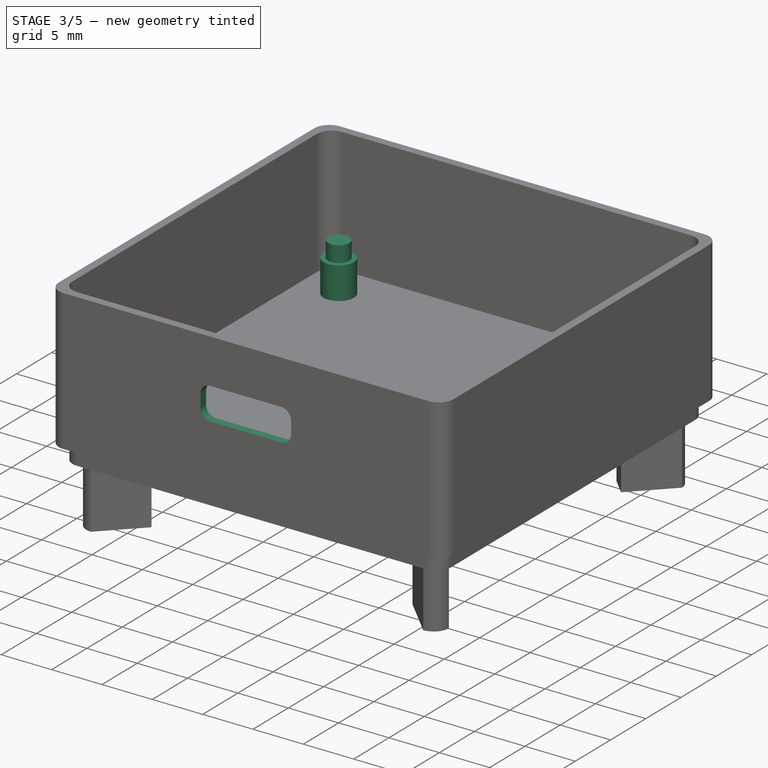
[diagram: stage 3 of 5 — iso view after this stage's code; geometry added in this stage tinted green]
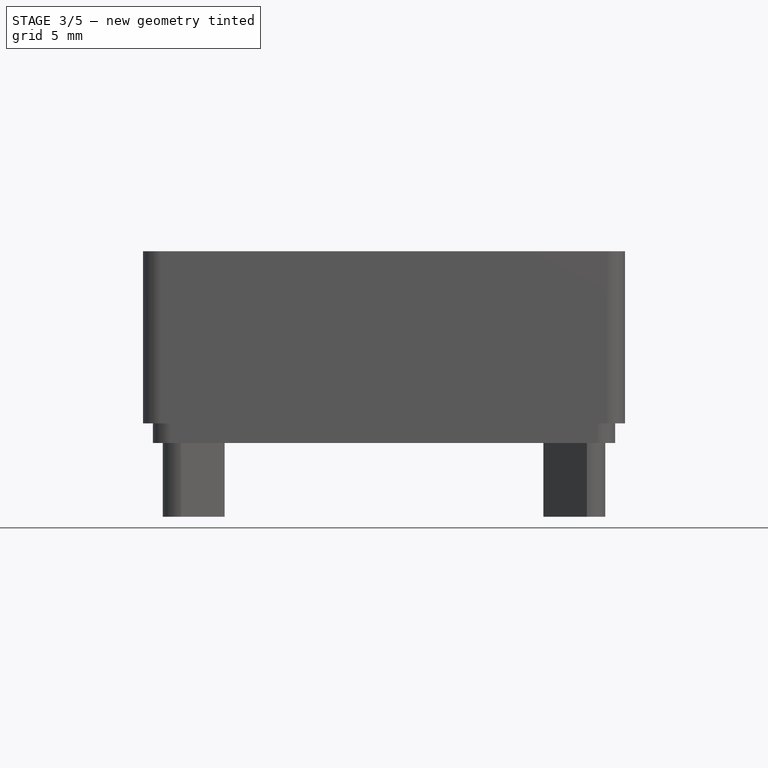
[diagram: stage 3 of 5 — front view after this stage's code; geometry added in this stage tinted green]
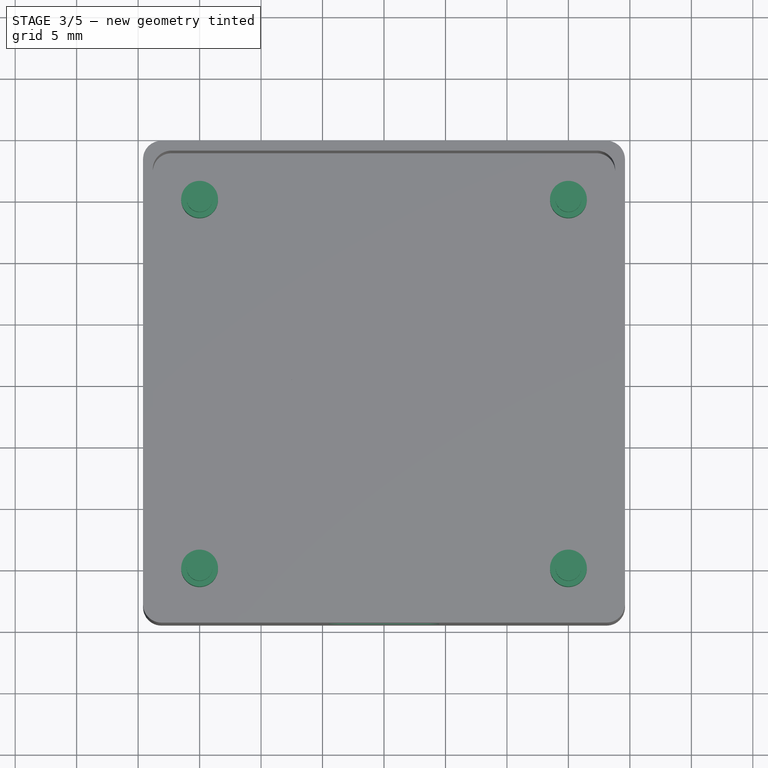
[diagram: stage 3 of 5 — top view after this stage's code; geometry added in this stage tinted green]
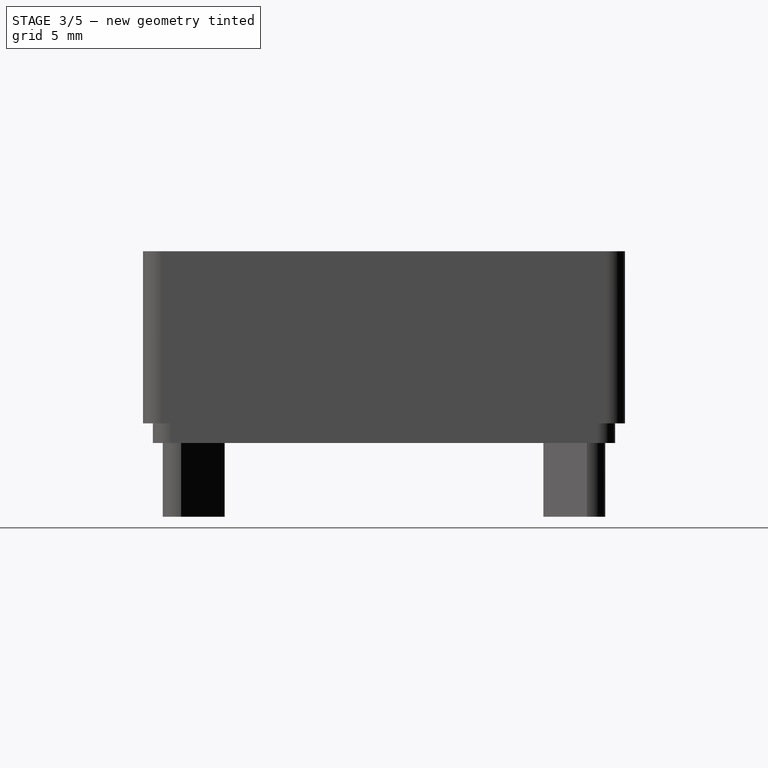
[diagram: stage 3 of 5 — right view after this stage's code; geometry added in this stage tinted green]
FEATURE [Sketcher::SketchObject] Sketch002
  FullyConstrained = true
  MapMode = 5
  Placement = pos=(0,0,1.6) rot=(0,0,1;0rad)
  Support = -> [Pocket]
  sketch-geometry (4):
    g0: Circle CenterX=-15 CenterY=15 CenterZ=0 NormalX=0 NormalY=0 NormalZ=1 AngleXU=0 Radius=1.5
    g1: Circle CenterX=15 CenterY=15 CenterZ=0 NormalX=0 NormalY=0 NormalZ=1 AngleXU=0 Radius=1.5
    g2: Circle CenterX=-15 CenterY=-15 CenterZ=0 NormalX=0 NormalY=0 NormalZ=1 AngleXU=0 Radius=1.5
    g3: Circle CenterX=15 CenterY=-15 CenterZ=0 NormalX=0 NormalY=0 NormalZ=1 AngleXU=0 Radius=1.5
  constraints (12):
    c: Equal(g0,g1)
    c: Equal(g1,g3)
    c: Equal(g3,g2)
    c: DistanceY(g-1,g0) = 15
    c: DistanceX(g0,g-1) = 15
    c: DistanceX(g-1,g3) = 15
    c: DistanceY(g3,g-1) = 15
    c: Horizontal(g0,g1)
    c: Horizontal(g3,g2)
    c: Vertical(g0,g2)
    c: Vertical(g3,g1)
    c: Diameter(g0) = 3
FEATURE [PartDesign::Pad] Pad001
  BaseFeature = -> Pocket
  Direction = (0,0,1)
  Length = 3.2
  Length2 = 10
  Profile = -> Sketch002
  ReferenceAxis = -> Sketch002 [N_Axis]
  Type = 0
FEATURE [Sketcher::SketchObject] Sketch003
  FullyConstrained = true
  MapMode = 5
  Placement = pos=(0,0,4.8) rot=(0,0,1;0rad)
  Support = -> [Pad001]
  sketch-geometry (4):
    g0: Circle CenterX=-15 CenterY=15 CenterZ=0 NormalX=0 NormalY=0 NormalZ=1 AngleXU=0 Radius=1.05
    g1: Circle CenterX=15 CenterY=15 CenterZ=0 NormalX=0 NormalY=0 NormalZ=1 AngleXU=0 Radius=1.05
    g2: Circle CenterX=-15 CenterY=-15 CenterZ=0 NormalX=0 NormalY=0 NormalZ=1 AngleXU=0 Radius=1.05
    g3: Circle CenterX=15 CenterY=-15 CenterZ=0 NormalX=0 NormalY=0 NormalZ=1 AngleXU=0 Radius=1.05
  constraints (12):
    c: Equal(g0,g1)
    c: Equal(g1,g3)
    c: Equal(g3,g2)
    c: DistanceY(g-1,g0) = 15
    c: DistanceX(g0,g-1) = 15
    c: DistanceX(g-1,g3) = 15
    c: DistanceY(g3,g-1) = 15
    c: Vertical(g3,g1)
    c: Vertical(g0,g2)
    c: Horizontal(g0,g1)
    c: Horizontal(g3,g2)
    c: Diameter(g0) = 2.1
FEATURE [PartDesign::Pad] Pad002
  BaseFeature = -> Pad001
  Direction = (0,0,1)
  Length = 1.6
  Length2 = 10
  Profile = -> Sketch003
  ReferenceAxis = -> Sketch003 [N_Axis]
  Type = 0
FEATURE [Sketcher::SketchObject] Sketch004
  FullyConstrained = true
  MapMode = 5
  Placement = pos=(0,-19.6,0) rot=(1,0,0;1.5708rad)
  Support = -> [Pad002]
  sketch-geometry (9):
    g0: LineSegment StartX=-4.5 StartY=8.575 StartZ=0 EndX=-4.5 EndY=7.375 EndZ=0
    g1: LineSegment StartX=-3.5 StartY=6.375 StartZ=0 EndX=3.5 EndY=6.375 EndZ=0
    g2: LineSegment StartX=4.5 StartY=7.375 StartZ=0 EndX=4.5 EndY=8.575 EndZ=0
    g3: LineSegment StartX=3.5 StartY=9.575 StartZ=0 EndX=-3.5 EndY=9.575 EndZ=0
    g4: GeomPoint X=0 Y=7.975 Z=0
    g5: ArcOfCircle CenterX=-3.5 CenterY=8.575 CenterZ=0 NormalX=0 NormalY=0 NormalZ=1 AngleXU=0 Radius=1 StartAngle=1.5708 EndAngle=3.14159
    g6: ArcOfCircle CenterX=3.5 CenterY=8.575 CenterZ=0 NormalX=0 NormalY=0 NormalZ=1 AngleXU=0 Radius=1 StartAngle=-9e-16 EndAngle=1.5708
    g7: ArcOfCircle CenterX=3.5 CenterY=7.375 CenterZ=0 NormalX=0 NormalY=0 NormalZ=1 AngleXU=0 Radius=1 StartAngle=4.71239 EndAngle=6.28319
    g8: ArcOfCircle CenterX=-3.5 CenterY=7.375 CenterZ=0 NormalX=0 NormalY=0 NormalZ=1 AngleXU=0 Radius=1 StartAngle=3.14159 EndAngle=4.71239
  constraints (22):
    c: Horizontal(g1)
    c: Horizontal(g3)
    c: Vertical(g0)
    c: Vertical(g2)
    c: PointOnObject(g4,g-2)
    c: DistanceY(g-1,g4) = 7.975
    c: Tangent(g0,g5) = -1.5708
    c: Tangent(g3,g5) = -1.5708
    c: Tangent(g2,g6) = -1.5708
    c: Tangent(g3,g6) = -1.5708
    c: Tangent(g1,g7) = -1.5708
    c: Tangent(g2,g7) = -1.5708
    c: Tangent(g0,g8) = -1.5708
    c: Tangent(g1,g8) = -1.5708
    c: Radius(g5) = 1
    c: Equal(g5,g6)
    c: Equal(g6,g7)
    c: Equal(g7,g8)
    c: DistanceX(g0,g4) = 4.5
    c: DistanceX(g4,g2) = 4.5
    c: DistanceY(g4,g3) = 1.6
    c: DistanceY(g1,g4) = 1.6
FEATURE [PartDesign::Pocket] Pocket001
  BaseFeature = -> Pad002
  Direction = (0,1,-2e-16)
  Length = 5
  Length2 = 5
  Profile = -> Sketch004
  ReferenceAxis = -> Sketch004 [N_Axis]
  Type = 2
FEATURE [Sketcher::SketchObject] Sketch009
  FullyConstrained = true
  MapMode = 5
  Placement = pos=(0,0,0) rot=(1,0,0;3.14159rad)
  Support = -> [Pocket001]
  sketch-geometry (8):
    g0: LineSegment StartX=-6.49519 StartY=3.75 StartZ=0 EndX=-3.30719 EndY=3.75 EndZ=0
    g1: LineSegment StartX=3.30719 StartY=3.75 StartZ=0 EndX=6.49519 EndY=3.75 EndZ=0
    g2: LineSegment StartX=-6.49519 StartY=-3.75 StartZ=0 EndX=-3.30719 EndY=-3.75 EndZ=0
    g3: LineSegment StartX=3.30719 StartY=-3.75 StartZ=0 EndX=6.49519 EndY=-3.75 EndZ=0
    g4: ArcOfCircle CenterX=0 CenterY=0 CenterZ=0 NormalX=0 NormalY=0 NormalZ=1 AngleXU=0 Radius=5 StartAngle=0.848062 EndAngle=2.29353
    g5: ArcOfCircle CenterX=0 CenterY=0 CenterZ=0 NormalX=0 NormalY=0 NormalZ=1 AngleXU=0 Radius=5 StartAngle=3.98965 EndAngle=5.43512
    g6: ArcOfCircle CenterX=0 CenterY=0 CenterZ=0 NormalX=0 NormalY=0 NormalZ=1 AngleXU=0 Radius=7.5 StartAngle=5.75959 EndAngle=6.80678
    g7: ArcOfCircle CenterX=0 CenterY=0 CenterZ=0 NormalX=0 NormalY=0 NormalZ=1 AngleXU=0 Radius=7.5 StartAngle=2.61799 EndAngle=3.66519
  constraints (24):
    c: Horizontal(g0)
    c: Horizontal(g1)
    c: Horizontal(g2)
    c: Horizontal(g3)
    c: Coincident(g4,g-1)
    c: Coincident(g4,g0)
    c: Coincident(g4,g1)
    c: Coincident(g5,g4)
    c: Coincident(g5,g2)
    c: Coincident(g5,g3)
    c: Coincident(g6,g4)
    c: Coincident(g6,g1)
    c: Coincident(g6,g3)
    c: Coincident(g7,g4)
    c: Coincident(g7,g0)
    c: Coincident(g7,g2)
    c: DistanceY(g4,g1) = 3.75
    c: DistanceY(g3,g4) = 3.75
    c: Horizontal(g1,g0)
    c: Horizontal(g3,g2)
    c: Diameter(g6) = 15
    c: Diameter(g4) = 10
    c: Equal(g6,g7)
    c: Equal(g4,g5)
FEATURE [PartDesign::Pocket] Pocket003
  BaseFeature = -> Pocket001
  Direction = (0,0,1)
  Length = 5
  Length2 = 5
  Profile = -> Sketch009
  ReferenceAxis = -> Sketch009 [N_Axis]
  Type = 2
FEATURE [PartDesign::Body] Body006  label="Calibrate (Button)"
  Group = -> [Sketch023,Pad016,Sketch024,Pocket005,Chamfer003]
  Origin = -> Origin021
  Placement = pos=(0,0,15) rot=(0,0,1;0rad)
  Tip = -> Chamfer003
FEATURE [Sketcher::SketchObject] Sketch029
  FullyConstrained = true
  MapMode = 5
  Placement = pos=(0,0,0) rot=(1,0,0;3.14159rad)
  Support = -> [Pocket003]
  sketch-geometry (16):
    g0: LineSegment StartX=-10 StartY=17.5 StartZ=0 EndX=10 EndY=17.5 EndZ=0
    g1: LineSegment StartX=10.4 StartY=17.1 StartZ=0 EndX=10.4 EndY=16.4 EndZ=0
    g2: LineSegment StartX=10 StartY=16 StartZ=0 EndX=-10 EndY=16 EndZ=0
    g3: LineSegment StartX=-10.4 StartY=16.4 StartZ=0 EndX=-10.4 EndY=17.1 EndZ=0
    g4: LineSegment StartX=-10 StartY=-16 StartZ=0 EndX=10 EndY=-16 EndZ=0
    g5: LineSegment StartX=10.4 StartY=-16.4 StartZ=0 EndX=10.4 EndY=-17.1 EndZ=0
    g6: LineSegment StartX=10 StartY=-17.5 StartZ=0 EndX=-10 EndY=-17.5 EndZ=0
    g7: LineSegment StartX=-10.4 StartY=-17.1 StartZ=0 EndX=-10.4 EndY=-16.4 EndZ=0
    g8: ArcOfCircle CenterX=-10 CenterY=17.1 CenterZ=0 NormalX=0 NormalY=0 NormalZ=1 AngleXU=0 Radius=0.4 StartAngle=1.5708 EndAngle=3.14159
    g9: ArcOfCircle CenterX=-10 CenterY=16.4 CenterZ=0 NormalX=0 NormalY=0 NormalZ=1 AngleXU=0 Radius=0.4 StartAngle=3.14159 EndAngle=4.71239
    g10: ArcOfCircle CenterX=10 CenterY=17.1 CenterZ=0 NormalX=0 NormalY=0 NormalZ=1 AngleXU=0 Radius=0.4 StartAngle=1.3e-15 EndAngle=1.5708
    g11: ArcOfCircle CenterX=10 CenterY=16.4 CenterZ=0 NormalX=0 NormalY=0 NormalZ=1 AngleXU=0 Radius=0.4 StartAngle=4.71239 EndAngle=6.28319
    g12: ArcOfCircle CenterX=10 CenterY=-16.4 CenterZ=0 NormalX=0 NormalY=0 NormalZ=1 AngleXU=0 Radius=0.4 StartAngle=-3.6e-15 EndAngle=1.5708
    g13: ArcOfCircle CenterX=10 CenterY=-17.1 CenterZ=0 NormalX=0 NormalY=0 NormalZ=1 AngleXU=0 Radius=0.4 StartAngle=4.71239 EndAngle=6.28319
    g14: ArcOfCircle CenterX=-10 CenterY=-16.4 CenterZ=0 NormalX=0 NormalY=0 NormalZ=1 AngleXU=0 Radius=0.4 StartAngle=1.5708 EndAngle=3.14159
    g15: ArcOfCircle CenterX=-10 CenterY=-17.1 CenterZ=0 NormalX=0 NormalY=0 NormalZ=1 AngleXU=0 Radius=0.4 StartAngle=3.14159 EndAngle=4.71239
  constraints (40):
    c: Horizontal(g0)
    c: Horizontal(g2)
    c: Vertical(g1)
    c: Vertical(g3)
    c: Horizontal(g4)
    c: Horizontal(g6)
    c: Vertical(g5)
    c: Vertical(g7)
    c: Tangent(g0,g8) = 1.5708
    c: Tangent(g3,g8) = 1.5708
    c: Tangent(g2,g9) = 1.5708
    c: Tangent(g3,g9) = 1.5708
    c: Tangent(g0,g10) = 1.5708
    c: Tangent(g1,g10) = 1.5708
    c: Tangent(g1,g11) = 1.5708
    c: Tangent(g2,g11) = 1.5708
    c: Tangent(g4,g12) = 1.5708
    c: Tangent(g5,g12) = 1.5708
    c: Tangent(g5,g13) = 1.5708
    c: Tangent(g6,g13) = 1.5708
    c: Tangent(g4,g14) = 1.5708
    c: Tangent(g7,g14) = 1.5708
    c: Tangent(g6,g15) = 1.5708
    c: Tangent(g7,g15) = 1.5708
    c: Equal(g8,g9)
    c: Equal(g9,g10)
    c: Equal(g10,g11)
    c: Equal(g11,g14)
    c: Equal(g14,g15)
    c: Equal(g15,g12)
    c: Equal(g12,g13)
    c: Radius(g8) = 0.4
    c: DistanceX(g0,g-1) = 10
    c: DistanceX(g-1,g0) = 10
    c: Vertical(g0,g4)
    c: Vertical(g4,g0)
    c: DistanceY(g6,g4) = 1.5
    c: Equal(g5,g1)
    c: DistanceY(g-1,g2) = 16
    c: DistanceY(g4,g-1) = 16
FEATURE [PartDesign::Pocket] Pocket008
  BaseFeature = -> Pocket003
  Direction = (0,0,1)
  Length = 0
  Length2 = 5
  Profile = -> Sketch029
  ReferenceAxis = -> Sketch029 [N_Axis]
  Type = 3
  UpToFace = -> Pocket003 [Face35]
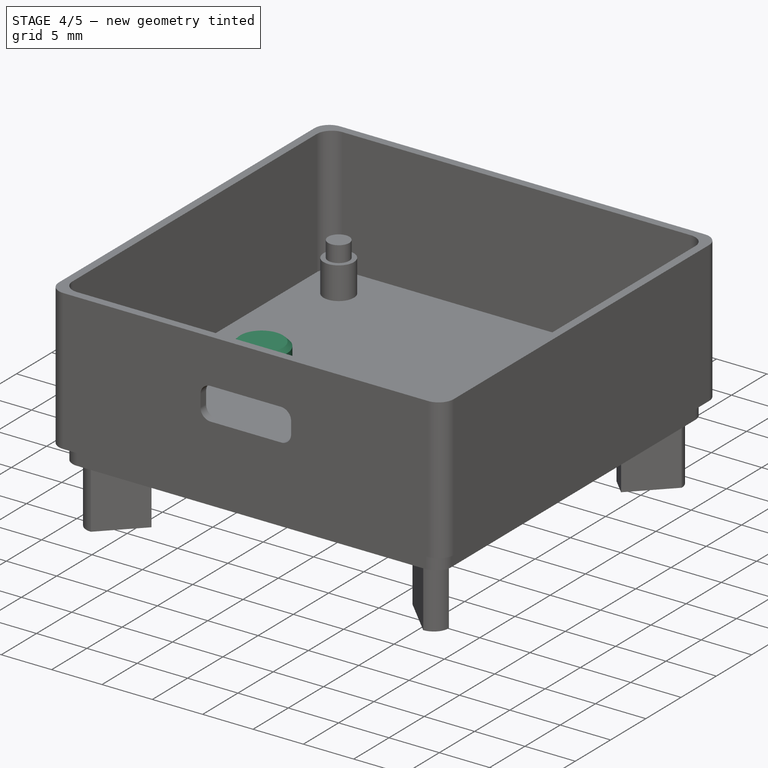
[diagram: stage 4 of 5 — iso view after this stage's code; geometry added in this stage tinted green]
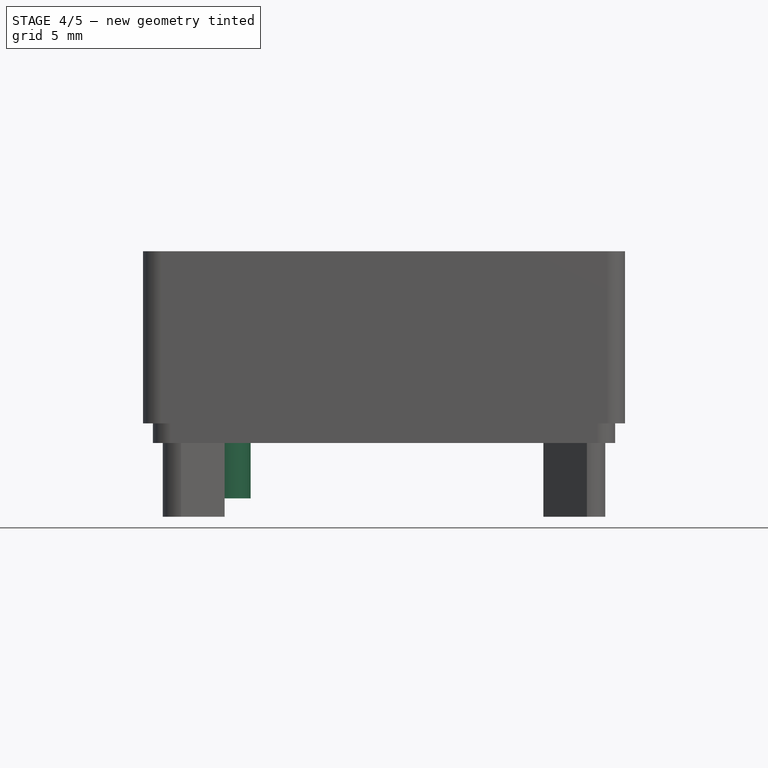
[diagram: stage 4 of 5 — front view after this stage's code; geometry added in this stage tinted green]
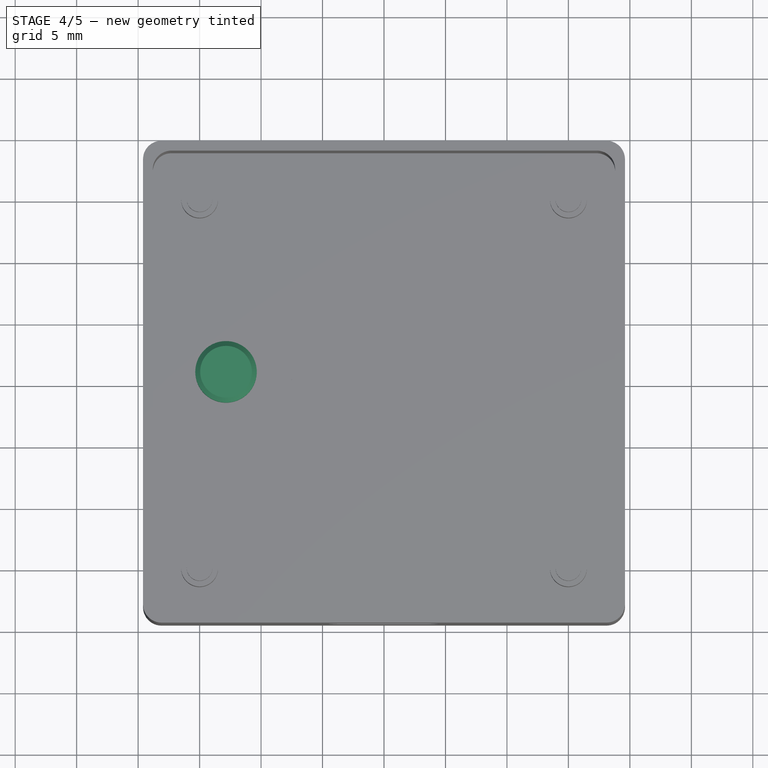
[diagram: stage 4 of 5 — top view after this stage's code; geometry added in this stage tinted green]
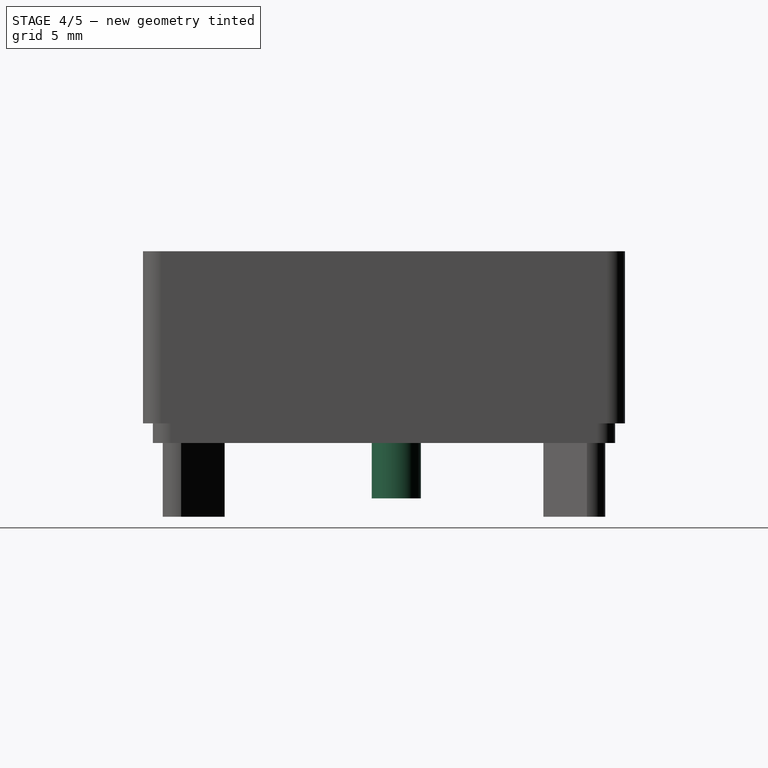
[diagram: stage 4 of 5 — right view after this stage's code; geometry added in this stage tinted green]
FEATURE [Sketcher::SketchObject] Sketch016
  FullyConstrained = true
  MapMode = 5
  Support = -> [XY_Plane018]
  sketch-geometry (1):
    g0: Circle CenterX=-12.85 CenterY=1 CenterZ=0 NormalX=0 NormalY=0 NormalZ=1 AngleXU=0 Radius=2
  constraints (3):
    c: Diameter(g0) = 4
    c: DistanceX(g0,g-1) = 12.85
    c: DistanceY(g-1,g0) = 1
FEATURE [PartDesign::Pad] Pad010
  Direction = (0,0,1)
  Length = 6.1
  Length2 = 10
  Profile = -> Sketch016
  ReferenceAxis = -> Sketch016 [N_Axis]
  Reversed = true
  Type = 0
FEATURE [PartDesign::Body] Body003  label="Calibrate (Shaft)"
  Group = -> [Sketch016,Pad010,Sketch017,Pad011]
  Origin = -> Origin018
  Placement = pos=(0,0,13.2) rot=(0,0,1;0rad)
  Tip = -> Pad011
FEATURE [Sketcher::SketchObject] Sketch023
  FullyConstrained = true
  MapMode = 5
  Support = -> [XY_Plane021]
  sketch-geometry (1):
    g0: Circle CenterX=-12.85 CenterY=1 CenterZ=0 NormalX=0 NormalY=0 NormalZ=1 AngleXU=0 Radius=2.5
  constraints (3):
    c: DistanceX(g0,g-1) = 12.85
    c: DistanceY(g-1,g0) = 1
    c: Diameter(g0) = 5
FEATURE [Sketcher::SketchObject] Sketch024
  FullyConstrained = true
  MapMode = 5
  Support = -> [XY_Plane021]
  sketch-geometry (1):
    g0: Circle CenterX=-12.85 CenterY=1 CenterZ=0 NormalX=0 NormalY=0 NormalZ=1 AngleXU=0 Radius=1.525
  constraints (3):
    c: Diameter(g0) = 3.05
    c: DistanceX(g0,g-1) = 12.85
    c: DistanceY(g-1,g0) = 1
FEATURE [PartDesign::Pad] Pad016
  Direction = (0,0,1)
  Length = 3.2
  Length2 = 10
  Profile = -> Sketch023
  ReferenceAxis = -> Sketch023 [N_Axis]
  Type = 0
FEATURE [PartDesign::Pocket] Pocket005
  BaseFeature = -> Pad016
  Direction = (0,0,-1)
  Length = 2.8
  Length2 = 5
  Profile = -> Sketch024
  ReferenceAxis = -> Sketch024 [N_Axis]
  Reversed = true
  Type = 0
FEATURE [PartDesign::Chamfer] Chamfer003
  Angle = 45
  Base = -> Pocket005 [Edge3]
  BaseFeature = -> Pocket005
  ChamferType = 0
  FlipDirection = false
  Size = 0.4
  Size2 = 1
  SupportTransform = false
  UseAllEdges = false
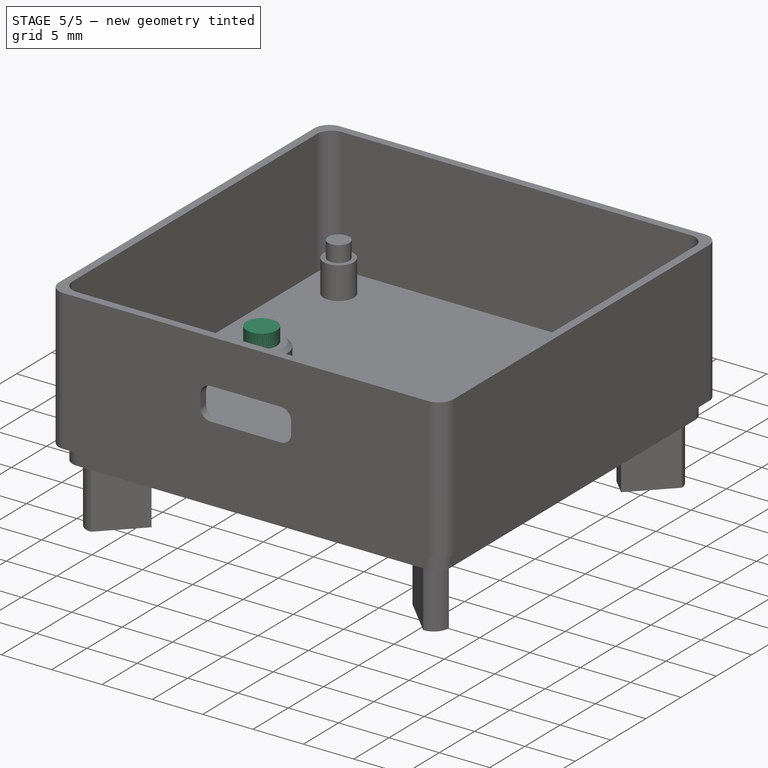
[diagram: stage 5 of 5 — iso view after this stage's code; geometry added in this stage tinted green]
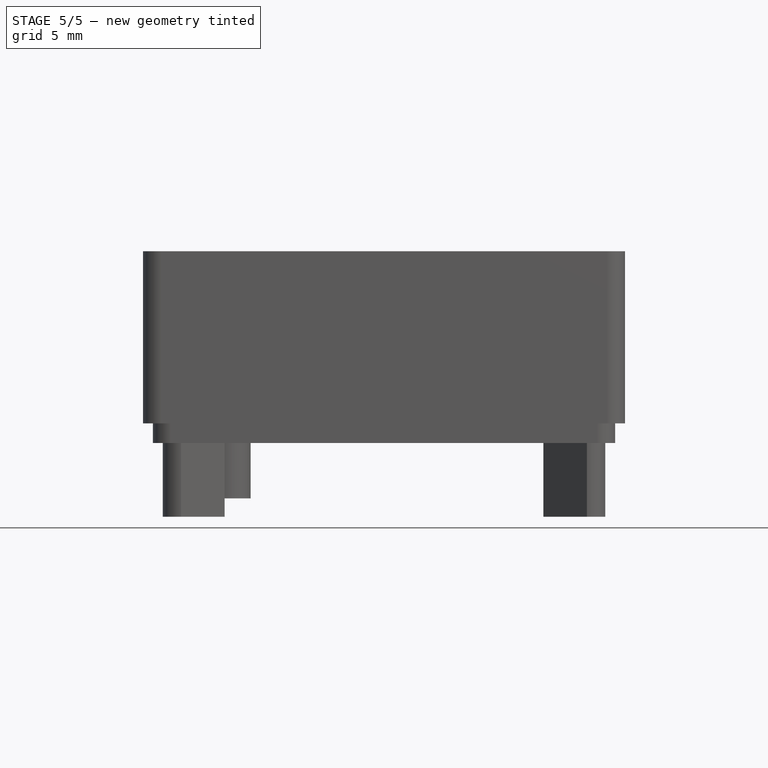
[diagram: stage 5 of 5 — front view after this stage's code; geometry added in this stage tinted green]
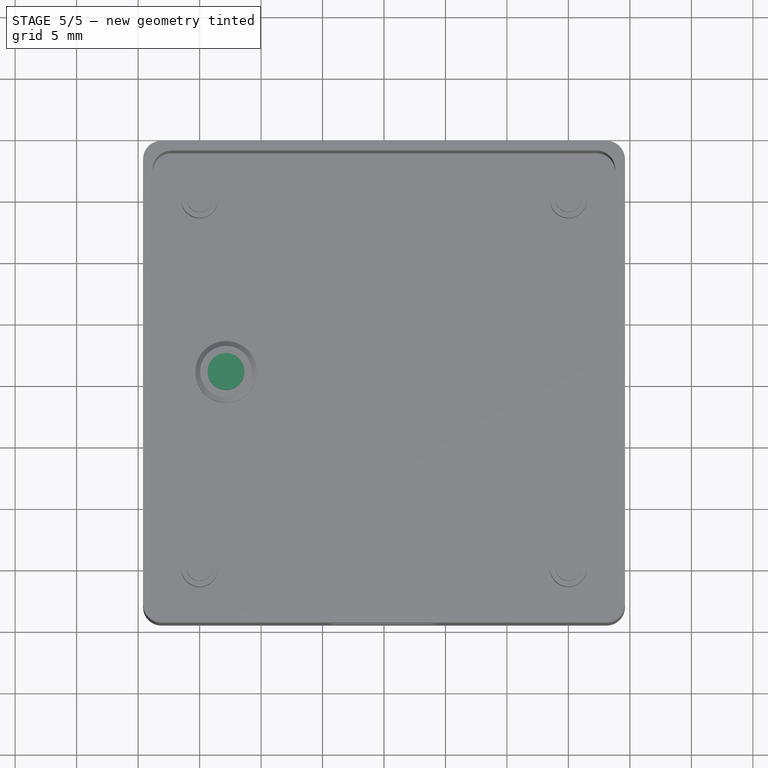
[diagram: stage 5 of 5 — top view after this stage's code; geometry added in this stage tinted green]
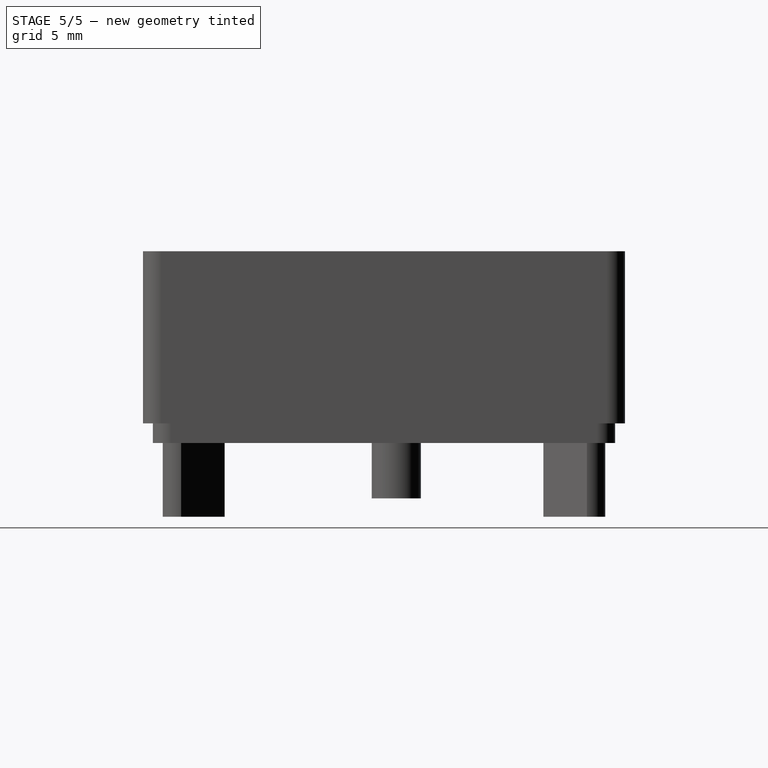
[diagram: stage 5 of 5 — right view after this stage's code; geometry added in this stage tinted green]
FEATURE [Sketcher::SketchObject] Sketch011
  FullyConstrained = true
  MapMode = 5
  Support = -> [XY_Plane017]
  sketch-geometry (8):
    g0: LineSegment StartX=-3.23071 StartY=3.55 StartZ=0 EndX=-3.23071 EndY=6.54618 EndZ=0
    g1: LineSegment StartX=3.23071 StartY=3.55 StartZ=0 EndX=3.23071 EndY=6.54618 EndZ=0
    g2: LineSegment StartX=3.23071 StartY=-3.55 StartZ=0 EndX=3.23071 EndY=-6.54618 EndZ=0
    g3: LineSegment StartX=-3.23071 StartY=-3.55 StartZ=0 EndX=-3.23071 EndY=-6.54618 EndZ=0
    g4: ArcOfCircle CenterX=0 CenterY=0 CenterZ=0 NormalX=0 NormalY=0 NormalZ=1 AngleXU=0 Radius=7.3 StartAngle=1.11234 EndAngle=2.02925
    g5: ArcOfCircle CenterX=0 CenterY=0 CenterZ=0 NormalX=0 NormalY=0 NormalZ=1 AngleXU=0 Radius=7.3 StartAngle=4.25393 EndAngle=5.17084
    g6: ArcOfCircle CenterX=0 CenterY=0 CenterZ=0 NormalX=0 NormalY=0 NormalZ=1 AngleXU=0 Radius=4.8 StartAngle=5.45073 EndAngle=7.11564
    g7: ArcOfCircle CenterX=0 CenterY=0 CenterZ=0 NormalX=0 NormalY=0 NormalZ=1 AngleXU=0 Radius=4.8 StartAngle=2.30914 EndAngle=3.97404
  constraints (24):
    c: Vertical(g0)
    c: Vertical(g1)
    c: Vertical(g2)
    c: Vertical(g3)
    c: Coincident(g4,g-1)
    c: Coincident(g4,g0)
    c: Coincident(g4,g1)
    c: Coincident(g5,g4)
    c: Coincident(g5,g3)
    c: Coincident(g5,g2)
    c: Coincident(g6,g4)
    c: Coincident(g6,g1)
    c: Coincident(g6,g2)
    c: Coincident(g7,g4)
    c: Coincident(g7,g0)
    c: Coincident(g7,g3)
    c: Vertical(g2,g1)
    c: Vertical(g3,g0)
    c: Diameter(g6) = 9.6
    c: Diameter(g4) = 14.6
    c: Equal(g4,g5)
    c: Equal(g6,g7)
    c: DistanceY(g4,g1) = 3.55
    c: Horizontal(g1,g0)
FEATURE [PartDesign::Pad] Pad007
  Direction = (0,0,1)
  Length = 1.6
  Length2 = 10
  Profile = -> Sketch011
  ReferenceAxis = -> Sketch011 [N_Axis]
  Type = 0
FEATURE [PartDesign::Chamfer] Chamfer
  Angle = 45
  Base = -> Pad007 [Edge24,Edge22,Edge19,Edge16,Edge13,Edge10,Edge7,Edge4]
  BaseFeature = -> Pad007
  ChamferType = 0
  FlipDirection = false
  Size = 0.8
  Size2 = 1
  SupportTransform = false
  UseAllEdges = false
FEATURE [Sketcher::SketchObject] Sketch013
  FullyConstrained = true
  MapMode = 5
  Placement = pos=(0,0,0) rot=(1,0,0;3.14159rad)
  Support = -> [Chamfer]
  sketch-geometry (4):
    g0: LineSegment StartX=-3.23071 StartY=3.55 StartZ=0 EndX=-3.23071 EndY=-3.55 EndZ=0
    g1: LineSegment StartX=3.23071 StartY=3.55 StartZ=0 EndX=3.23071 EndY=-3.55 EndZ=0
    g2: ArcOfCircle CenterX=0 CenterY=0 CenterZ=0 NormalX=0 NormalY=0 NormalZ=1 AngleXU=0 Radius=4.8 StartAngle=0.832451 EndAngle=2.30914
    g3: ArcOfCircle CenterX=0 CenterY=0 CenterZ=0 NormalX=0 NormalY=0 NormalZ=1 AngleXU=0 Radius=4.8 StartAngle=3.97404 EndAngle=5.45073
  constraints (12):
    c: Vertical(g0)
    c: Vertical(g1)
    c: Coincident(g2,g-1)
    c: Coincident(g2,g0)
    c: Coincident(g2,g1)
    c: Coincident(g3,g2)
    c: Coincident(g3,g0)
    c: Coincident(g3,g1)
    c: Diameter(g2) = 9.6
    c: Equal(g2,g3)
    c: DistanceY(g1,g1) = 7.1
    c: Equal(g1,g0)
FEATURE [PartDesign::Pad] Pad008
  BaseFeature = -> Chamfer
  Direction = (0,0,-1)
  Length = 1.55
  Length2 = 10
  Profile = -> Sketch013
  ReferenceAxis = -> Sketch013 [N_Axis]
  Type = 0
FEATURE [Sketcher::SketchObject] Sketch017
  FullyConstrained = true
  MapMode = 5
  Support = -> [Pad010]
  sketch-geometry (1):
    g0: Circle CenterX=-12.85 CenterY=1 CenterZ=0 NormalX=0 NormalY=0 NormalZ=1 AngleXU=0 Radius=1.5
  constraints (3):
    c: DistanceX(g0,g-1) = 12.85
    c: DistanceY(g-1,g0) = 1
    c: Diameter(g0) = 3
FEATURE [PartDesign::Pad] Pad011
  BaseFeature = -> Pad010
  Direction = (0,0,1)
  Length = 4.6
  Length2 = 10
  Profile = -> Sketch017
  ReferenceAxis = -> Sketch017 [N_Axis]
  Type = 0
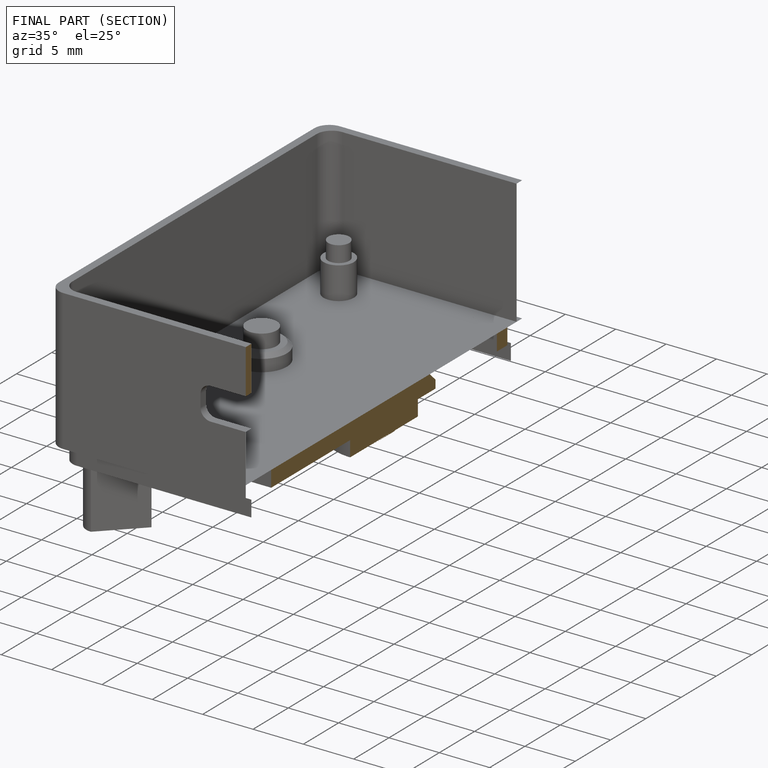
[diagram: finished part — half-section view (interior)]
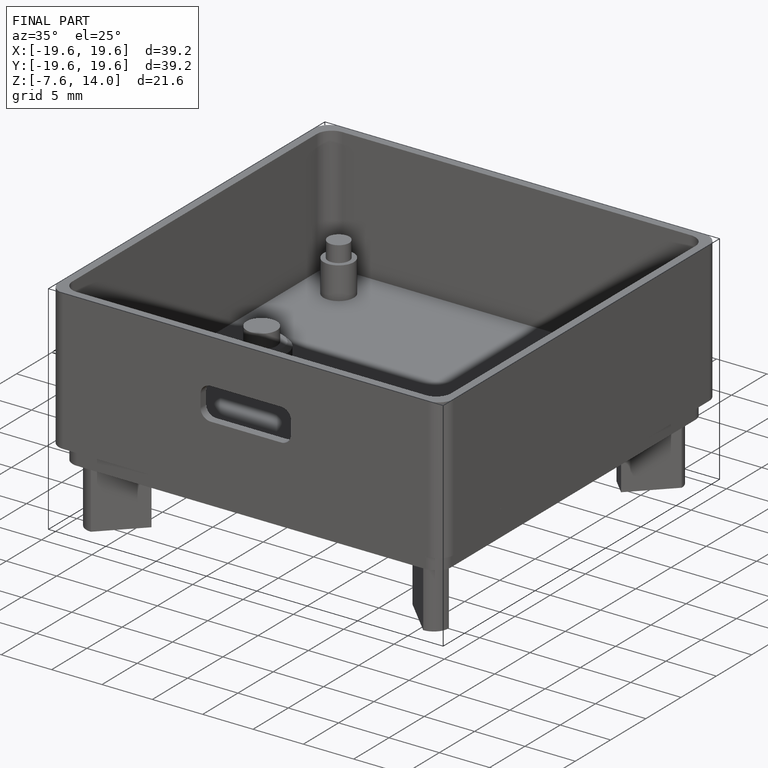
[diagram: finished part — iso view with bounding-box wireframe]
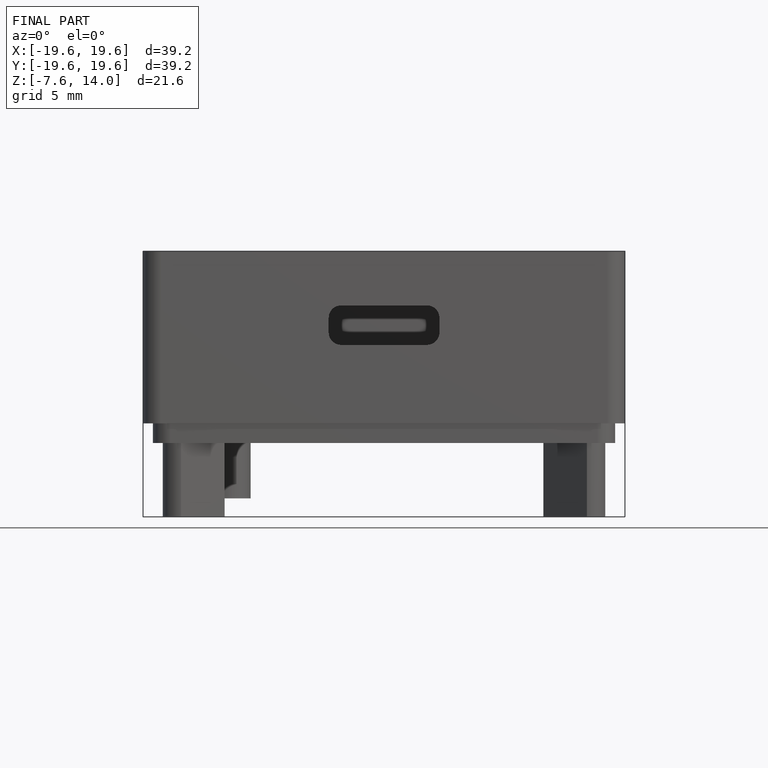
[diagram: finished part — front view with bounding-box wireframe]
